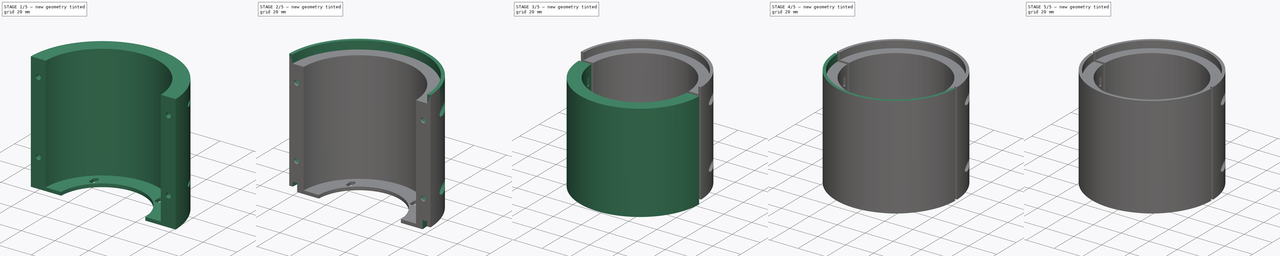
[diagram: build sequence overview — one tinted view per stage of 5, left to right]
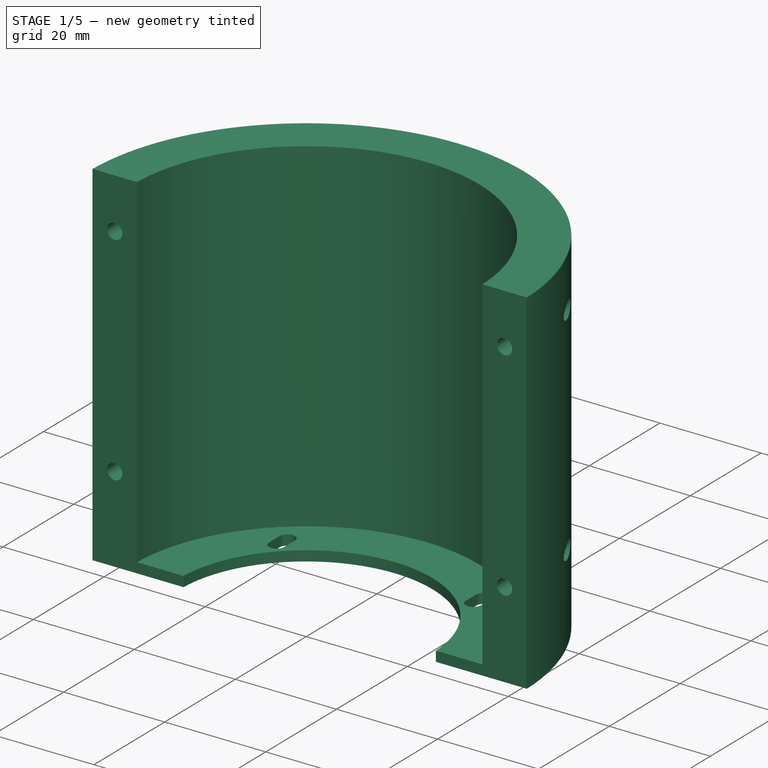
[diagram: stage 1 of 5 — iso view after this stage's code; geometry added in this stage tinted green]
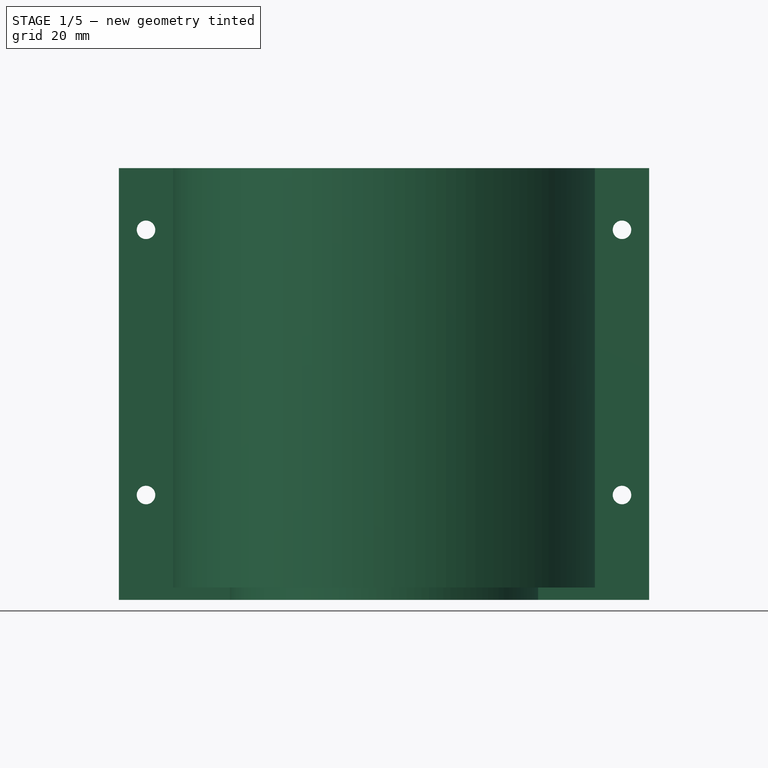
[diagram: stage 1 of 5 — front view after this stage's code; geometry added in this stage tinted green]
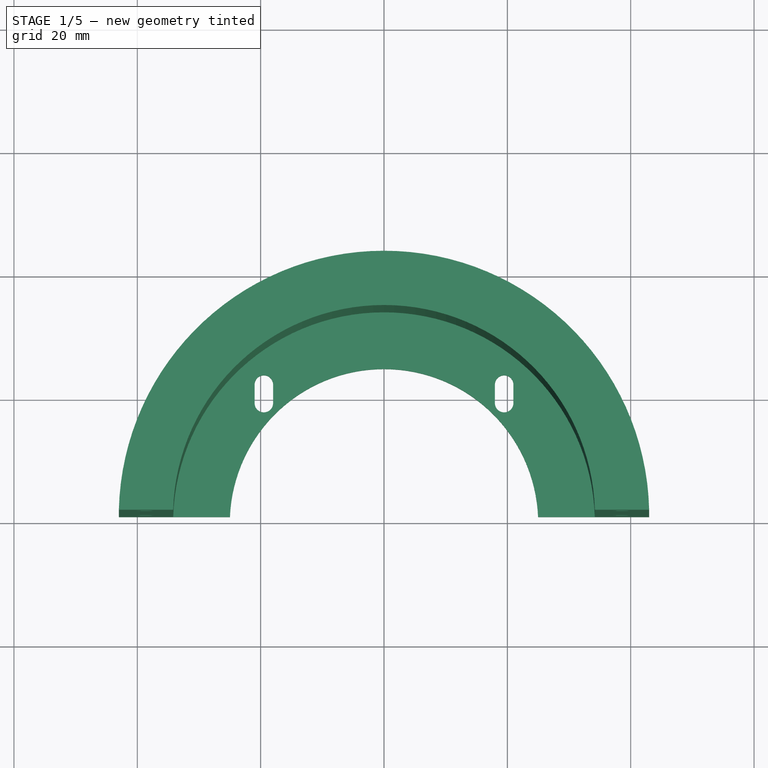
[diagram: stage 1 of 5 — top view after this stage's code; geometry added in this stage tinted green]
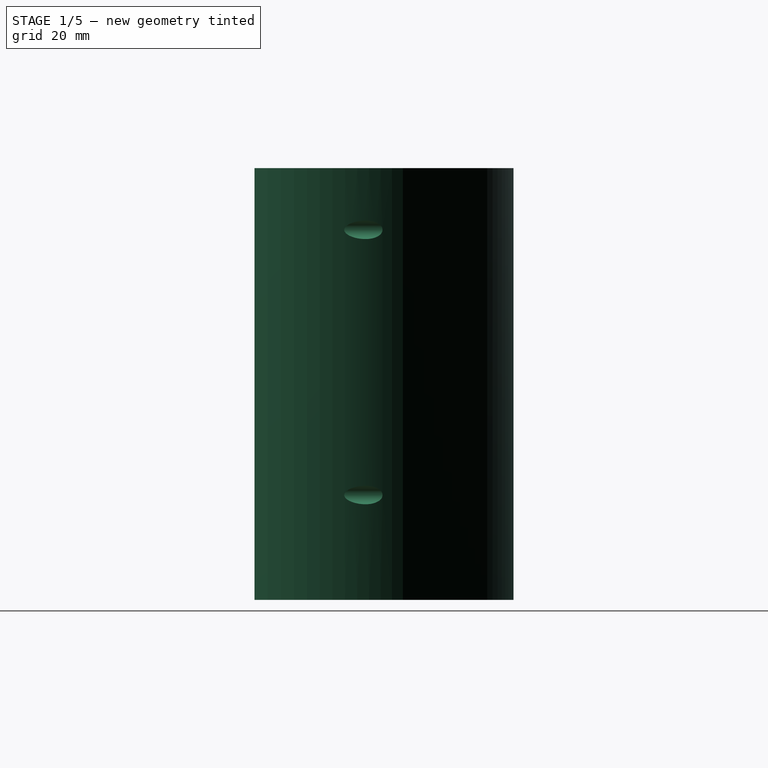
[diagram: stage 1 of 5 — right view after this stage's code; geometry added in this stage tinted green]
FCSTD DOCUMENT  (FreeCAD 1.0R39109 (Git))
Label: Rollei SL66 - Rollei Vario - Heidosmat
License: All rights reserved
LicenseURL: http://en.wikipedia.org/wiki/All_rights_reserved
objects: Sketcher::SketchObject×21, PartDesign::Pocket×14, PartDesign::Pad×6, PartDesign::Body×3, PartDesign::Revolution×1
note: 108 computed .brp shape members not serialized (recipe doc carries the construction recipe); baked Part::Feature solids carry a one-line shape summary decoded from their .brp

FEATURE [Sketcher::SketchObject] Sketch007
  ArcFitTolerance = 1e-06
  AttachmentSupport = -> [XY_Plane002]
  FullyConstrained = true
  MakeInternals = false
  MapMode = 5
  sketch-geometry (4):
    g0: ArcOfCircle CenterX=0 CenterY=0 CenterZ=0 NormalX=0 NormalY=0 NormalZ=1 AngleXU=0 Radius=25 StartAngle=0.0400107 EndAngle=3.10158
    g1: ArcOfCircle CenterX=0 CenterY=0 CenterZ=0 NormalX=0 NormalY=0 NormalZ=1 AngleXU=0 Radius=43 StartAngle=0.0232579 EndAngle=3.11833
    g2: LineSegment StartX=-42.9884 StartY=1 StartZ=0 EndX=-24.98 EndY=1 EndZ=0
    g3: LineSegment StartX=24.98 StartY=1 StartZ=0 EndX=42.9884 EndY=1 EndZ=0
  constraints (14):
    c: Coincident(g0,g-1)
    c: Coincident(g1,g0)
    c: Horizontal(g0,g1)
    c: Horizontal(g0,g1)
    c: Horizontal(g0,g0)
    c: Radius(g0) = 25
    c: Radius(g1) = 43
    c: Radius(g1) = 43
    c: Radius(g1) = 43
    c: DistanceY(g0,g0) = 1
    c: Coincident(g2,g1)
    c: Coincident(g2,g0)
    c: Coincident(g3,g0)
    c: Coincident(g3,g1)
FEATURE [PartDesign::Pad] Pad002
  Direction = (0,0,1)
  Length = 2
  Length2 = 10
  Profile = -> Sketch007
  ReferenceAxis = -> Sketch007 [N_Axis]
  Refine = true
  Suppressed = false
  Type = 0
FEATURE [Sketcher::SketchObject] Sketch008
  ArcFitTolerance = 1e-06
  AttachmentSupport = -> [Pad002]
  FullyConstrained = true
  MakeInternals = false
  MapMode = 5
  Placement = pos=(0,0,2) rot=(0,0,1;0rad)
  sketch-geometry (12):
    g0: GeomPoint X=-19.4807 Y=19.4807 Z=0
    g1: GeomPoint X=19.4807 Y=19.4807 Z=0
    g2: LineSegment [constr] StartX=-19.4807 StartY=19.4807 StartZ=0 EndX=0 EndY=0 EndZ=0
    g3: GeomPoint [constr] X=-18.42 Y=18.42 Z=0
    g4: ArcOfCircle CenterX=-19.4807 CenterY=19.4807 CenterZ=0 NormalX=0 NormalY=0 NormalZ=1 AngleXU=0 Radius=1.5 StartAngle=3.14159 EndAngle=6.28319
    g5: LineSegment StartX=-20.9807 StartY=19.4807 StartZ=0 EndX=-20.9807 EndY=22.4807 EndZ=0
    g6: LineSegment StartX=-17.9807 StartY=19.4807 StartZ=0 EndX=-17.9807 EndY=22.4807 EndZ=0
    g7: ArcOfCircle CenterX=-19.4807 CenterY=22.4807 CenterZ=0 NormalX=0 NormalY=0 NormalZ=1 AngleXU=0 Radius=1.5 StartAngle=-9e-16 EndAngle=3.14159
    g8: ArcOfCircle CenterX=19.4807 CenterY=19.4807 CenterZ=0 NormalX=0 NormalY=0 NormalZ=1 AngleXU=0 Radius=1.5 StartAngle=3.14159 EndAngle=6.28319
    g9: ArcOfCircle CenterX=19.4807 CenterY=22.4807 CenterZ=0 NormalX=0 NormalY=0 NormalZ=1 AngleXU=0 Radius=1.5 StartAngle=9e-16 EndAngle=3.14159
    g10: LineSegment StartX=17.9807 StartY=19.4807 StartZ=0 EndX=17.9807 EndY=22.4807 EndZ=0
    g11: LineSegment StartX=20.9807 StartY=19.4807 StartZ=0 EndX=20.9807 EndY=22.4807 EndZ=0
  constraints (30):
    c: Coincident(g2,g0)
    c: Coincident(g2,g-1)
    c: PointOnObject(g3,g2)
    c: DistanceX(g3,g2) = 18.42
    c: DistanceY(g2,g3) = 18.42
    c: Symmetric(g0,g1,g-2)
    c: Coincident(g4,g0)
    c: Angle(g4) = 3.14159
    c: Horizontal(g4,g4)
    c: Coincident(g5,g4)
    c: Vertical(g5)
    c: Coincident(g6,g4)
    c: Vertical(g6)
    c: Coincident(g7,g5)
    c: Coincident(g7,g6)
    c: Angle(g7) = 3.14159
    c: Horizontal(g6,g5)
    c: Diameter(g7) = 3
    c: PointOnObject(g3,g4)
    c: DistanceY(g6,g6) = 3
    c: Coincident(g8,g1)
    c: Coincident(g10,g8)
    c: Coincident(g10,g9)
    c: Coincident(g11,g8)
    c: Coincident(g11,g9)
    c: Symmetric(g7,g9,g-2)
    c: Symmetric(g4,g8,g-2)
    c: Symmetric(g9,g6,g-2)
    c: Equal(g11,g10)
    c: Horizontal(g8,g8)
FEATURE [PartDesign::Pocket] Pocket004
  BaseFeature = -> Pad002
  Direction = (0,0,-1)
  Length = 5
  Length2 = 5
  Profile = -> Sketch008
  ReferenceAxis = -> Sketch008 [N_Axis]
  Refine = true
  Suppressed = false
  Type = 0
FEATURE [Sketcher::SketchObject] Sketch009
  ArcFitTolerance = 1e-06
  AttachmentSupport = -> [Pocket004]
  ExternalGeometry = -> [Pocket004]
  FullyConstrained = true
  MakeInternals = false
  MapMode = 5
  Placement = pos=(0,0,2) rot=(0,0,1;0rad)
  sketch-geometry (4):
    g0: ArcOfCircle CenterX=0 CenterY=0 CenterZ=0 NormalX=0 NormalY=0 NormalZ=1 AngleXU=0 Radius=34.2 StartAngle=0.0292439 EndAngle=3.11235
    g1: ArcOfCircle CenterX=0 CenterY=0 CenterZ=0 NormalX=0 NormalY=0 NormalZ=1 AngleXU=0 Radius=43 StartAngle=0.0232579 EndAngle=3.11833
    g2: LineSegment StartX=-42.9884 StartY=1 StartZ=0 EndX=-34.1854 EndY=1 EndZ=0
    g3: LineSegment StartX=34.1854 StartY=1 StartZ=0 EndX=42.9884 EndY=1 EndZ=0
  constraints (11):
    c: Coincident(g0,g-1)
    c: Coincident(g1,g0)
    c: Horizontal(g1,g0)
    c: Horizontal(g0,g1)
    c: Horizontal(g0,g0)
    c: Radius(g0) = 34.2
    c: Coincident(g2,g1)
    c: Coincident(g2,g0)
    c: Coincident(g3,g0)
    c: Coincident(g3,g1)
    c: Coincident(g-3,g1)
FEATURE [PartDesign::Pad] Pad003
  BaseFeature = -> Pocket004
  Direction = (0,0,1)
  Length = 68
  Length2 = 10
  Profile = -> Sketch009
  ReferenceAxis = -> Sketch009 [N_Axis]
  Refine = true
  Suppressed = false
  Type = 0
FEATURE [Sketcher::SketchObject] Sketch010
  ArcFitTolerance = 1e-06
  AttachmentSupport = -> [XZ_Plane002]
  ExternalGeometry = -> [Pad003]
  FullyConstrained = true
  MakeInternals = false
  MapMode = 5
  Placement = pos=(0,0,0) rot=(1,0,0;1.5708rad)
  sketch-geometry (16):
    g0: GeomPoint X=-38.5869 Y=17 Z=0
    g1: GeomPoint X=-38.5869 Y=60 Z=0
    g2: GeomPoint X=38.5869 Y=17 Z=0
    g3: GeomPoint X=38.5869 Y=60 Z=0
    g4: LineSegment [constr] StartX=-42.9884 StartY=60 StartZ=0 EndX=-38.5869 EndY=60 EndZ=0
    g5: LineSegment [constr] StartX=-38.5869 StartY=60 StartZ=0 EndX=-34.1854 EndY=60 EndZ=0
    g6: LineSegment [constr] StartX=-38.5869 StartY=17 StartZ=0 EndX=-34.1854 EndY=17 EndZ=0
    g7: LineSegment [constr] StartX=-38.5869 StartY=17 StartZ=0 EndX=-42.9884 EndY=17 EndZ=0
    g8: LineSegment [constr] StartX=38.5869 StartY=17 StartZ=0 EndX=42.9884 EndY=17 EndZ=0
    g9: LineSegment [constr] StartX=38.5869 StartY=17 StartZ=0 EndX=34.1854 EndY=17 EndZ=0
    g10: LineSegment [constr] StartX=38.5869 StartY=60 StartZ=0 EndX=42.9884 EndY=60 EndZ=0
    g11: LineSegment [constr] StartX=38.5869 StartY=60 StartZ=0 EndX=34.1854 EndY=60 EndZ=0
    g12: Circle CenterX=-38.5869 CenterY=60 CenterZ=0 NormalX=0 NormalY=0 NormalZ=1 AngleXU=0 Radius=1.5
    g13: Circle CenterX=38.5869 CenterY=60 CenterZ=0 NormalX=0 NormalY=0 NormalZ=1 AngleXU=0 Radius=1.5
    g14: Circle CenterX=38.5869 CenterY=17 CenterZ=0 NormalX=0 NormalY=0 NormalZ=1 AngleXU=0 Radius=1.5
    g15: Circle CenterX=-38.5869 CenterY=17 CenterZ=0 NormalX=0 NormalY=0 NormalZ=1 AngleXU=0 Radius=1.5
  constraints (40):
    c: PointOnObject(g4,g-4)
    c: Coincident(g4,g1)
    c: Coincident(g5,g1)
    c: PointOnObject(g5,g-3)
    c: Horizontal(g5)
    c: Coincident(g6,g0)
    c: PointOnObject(g6,g-3)
    c: Horizontal(g6)
    c: Coincident(g7,g0)
    c: PointOnObject(g7,g-4)
    c: Horizontal(g7)
    c: Coincident(g8,g2)
    c: PointOnObject(g8,g-6)
    c: Horizontal(g8)
    c: Coincident(g9,g2)
    c: PointOnObject(g9,g-5)
    c: Horizontal(g9)
    c: Coincident(g10,g3)
    c: PointOnObject(g10,g-6)
    c: Horizontal(g10)
    c: Coincident(g11,g3)
    c: PointOnObject(g11,g-5)
    c: Equal(g4,g5)
    c: Horizontal(g4)
    c: Equal(g7,g6)
    c: Equal(g9,g8)
    c: Horizontal(g11)
    c: Equal(g11,g10)
    c: DistanceY(g-3,g6) = 15
    c: Horizontal(g6,g9)
    c: DistanceY(g4,g-4) = 10
    c: Horizontal(g11,g5)
    c: Coincident(g12,g1)
    c: Coincident(g13,g3)
    c: Coincident(g14,g2)
    c: Coincident(g15,g0)
    c: Equal(g15,g12)
    c: Equal(g15,g14)
    c: Equal(g14,g13)
    c: Diameter(g12) = 3
FEATURE [PartDesign::Pocket] Pocket005
  BaseFeature = -> Pad003
  Direction = (0,1,-2e-16)
  Length = 5
  Length2 = 5
  Profile = -> Sketch010
  ReferenceAxis = -> Sketch010 [N_Axis]
  Refine = true
  Suppressed = false
  Type = 1
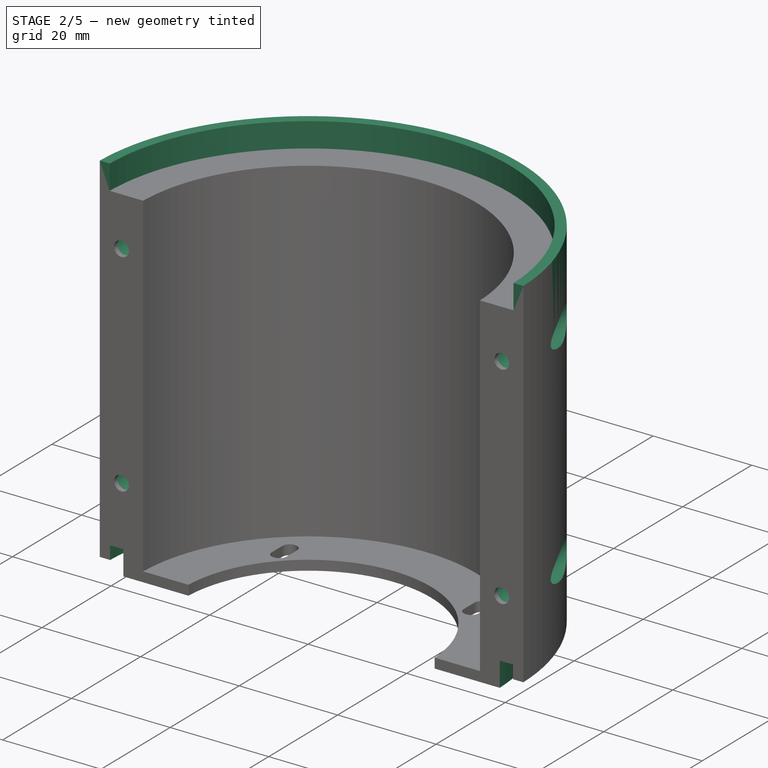
[diagram: stage 2 of 5 — iso view after this stage's code; geometry added in this stage tinted green]
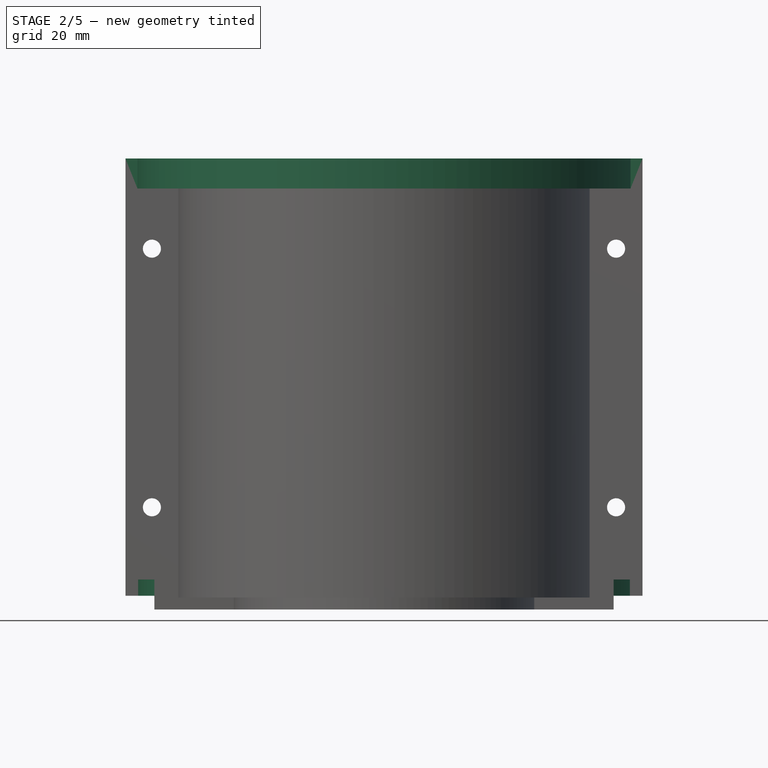
[diagram: stage 2 of 5 — front view after this stage's code; geometry added in this stage tinted green]
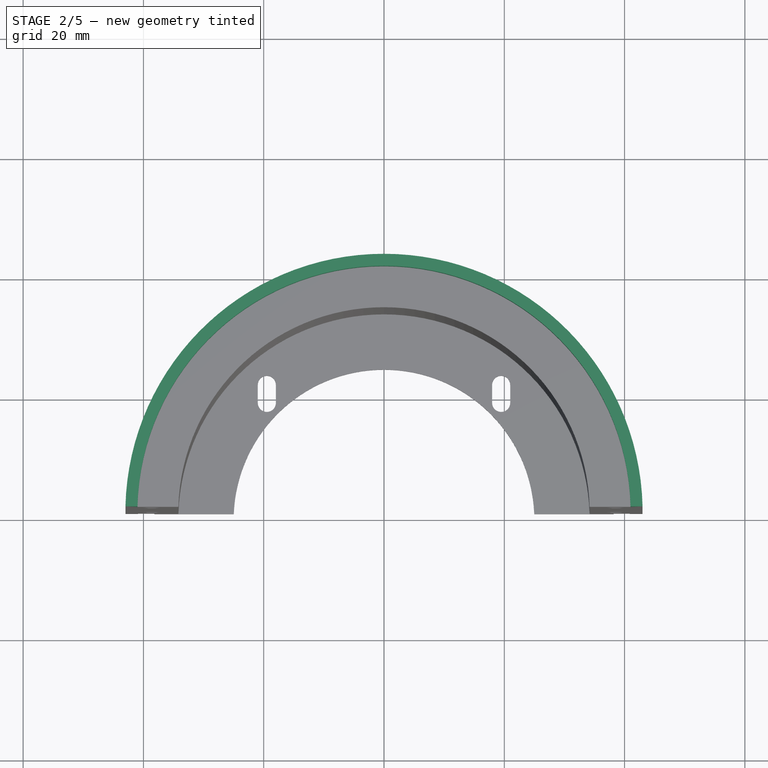
[diagram: stage 2 of 5 — top view after this stage's code; geometry added in this stage tinted green]
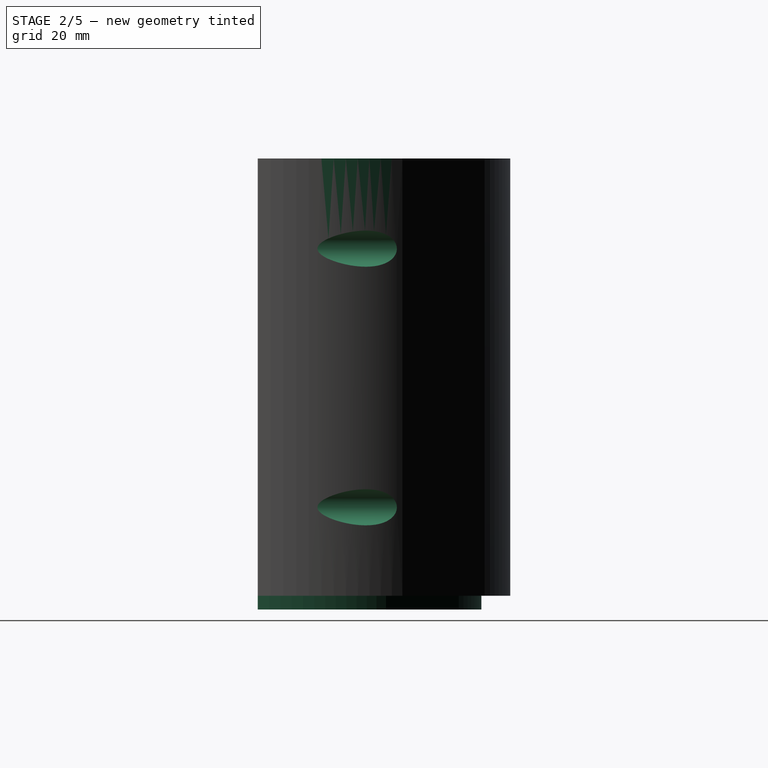
[diagram: stage 2 of 5 — right view after this stage's code; geometry added in this stage tinted green]
FEATURE [Sketcher::SketchObject] Sketch011
  ArcFitTolerance = 1e-06
  AttachmentSupport = -> [XZ_Plane002]
  ExternalGeometry = -> [Pocket005]
  FullyConstrained = true
  MakeInternals = false
  MapMode = 5
  Placement = pos=(0,0,0) rot=(1,0,0;1.5708rad)
  sketch-geometry (4):
    g0: Circle CenterX=-38.5869 CenterY=60 CenterZ=0 NormalX=0 NormalY=0 NormalZ=1 AngleXU=0 Radius=3
    g1: Circle CenterX=-38.5869 CenterY=17 CenterZ=0 NormalX=0 NormalY=0 NormalZ=1 AngleXU=0 Radius=3
    g2: Circle CenterX=38.5869 CenterY=17 CenterZ=0 NormalX=0 NormalY=0 NormalZ=1 AngleXU=0 Radius=3
    g3: Circle CenterX=38.5869 CenterY=60 CenterZ=0 NormalX=0 NormalY=0 NormalZ=1 AngleXU=0 Radius=3
  constraints (8):
    c: Equal(g3,g2)
    c: Equal(g2,g1)
    c: Equal(g1,g0)
    c: Diameter(g0) = 6
    c: Coincident(g0,g-6)
    c: Coincident(g1,g-5)
    c: Coincident(g2,g-4)
    c: Coincident(g3,g-3)
FEATURE [PartDesign::Pocket] Pocket006
  BaseFeature = -> Pocket005
  Direction = (0,1,-2e-16)
  Length = 26
  Length2 = -2
  Profile = -> Sketch011
  ReferenceAxis = -> Sketch011 [N_Axis]
  Refine = true
  Suppressed = false
  Type = 4
FEATURE [Sketcher::SketchObject] Sketch015
  ArcFitTolerance = 1e-06
  AttachmentSupport = -> [XY_Plane002]
  ExternalGeometry = -> [Pocket006]
  FullyConstrained = true
  MakeInternals = false
  MapMode = 5
  sketch-geometry (2):
    g0: Circle CenterX=0 CenterY=0 CenterZ=0 NormalX=0 NormalY=0 NormalZ=1 AngleXU=0 Radius=38.2
    g1: Circle CenterX=0 CenterY=0 CenterZ=0 NormalX=0 NormalY=0 NormalZ=1 AngleXU=0 Radius=43
  constraints (4):
    c: Coincident(g0,g-1)
    c: Coincident(g1,g0)
    c: Radius(g0) = 38.2
    c: PointOnObject(g-3,g1)
FEATURE [PartDesign::Pocket] Pocket010
  BaseFeature = -> Pocket006
  Direction = (0,0,-1)
  Length = 2.3
  Length2 = 5
  Profile = -> Sketch015
  ReferenceAxis = -> Sketch015 [N_Axis]
  Refine = true
  Reversed = true
  Suppressed = false
  Type = 0
FEATURE [Sketcher::SketchObject] Sketch018
  ArcFitTolerance = 1e-06
  AttachmentSupport = -> [XY_Plane002]
  ExternalGeometry = -> [Pocket010]
  FullyConstrained = true
  MakeInternals = false
  MapMode = 5
  sketch-geometry (4):
    g0: ArcOfCircle CenterX=0 CenterY=0 CenterZ=0 NormalX=0 NormalY=0 NormalZ=1 AngleXU=0 Radius=40.8991 StartAngle=0.0244528 EndAngle=3.11714
    g1: LineSegment StartX=-38.1869 StartY=1 StartZ=0 EndX=-40.8869 EndY=1 EndZ=0
    g2: ArcOfCircle CenterX=0 CenterY=0 CenterZ=0 NormalX=0 NormalY=0 NormalZ=1 AngleXU=0 Radius=38.2 StartAngle=0.026181 EndAngle=3.11541
    g3: LineSegment StartX=38.1869 StartY=1 StartZ=0 EndX=40.8869 EndY=1 EndZ=0
  constraints (11):
    c: Coincident(g0,g-1)
    c: Coincident(g2,g0)
    c: Coincident(g1,g2)
    c: Coincident(g3,g2)
    c: Coincident(g0,g3)
    c: Horizontal(g1)
    c: Coincident(g0,g1)
    c: Horizontal(g1,g2)
    c: DistanceX(g3,g3) = 2.7
    c: Horizontal(g2,g0)
    c: Coincident(g2,g-3)
FEATURE [PartDesign::Pocket] Pocket013
  BaseFeature = -> Pocket010
  Direction = (0,0,-1)
  Length = 5
  Length2 = 5
  Profile = -> Sketch018
  ReferenceAxis = -> Sketch018 [N_Axis]
  Refine = true
  Reversed = true
  Suppressed = false
  Type = 0
FEATURE [PartDesign::Body] Body001  label="lens holder lower part"
  AllowCompound = false
  Group = -> [Sketch004,Pad,Sketch005,Pocket003,Sketch006,Pad001,Sketch012,Pocket007,Sketch013,Pocket008,Sketch014,Pocket009,Sketch016,Pocket011,Sketch017,Pocket012,Sketch019,Pad004]
  Origin = -> Origin001
  Placement = pos=(0,0,22) rot=(0,0,1;0rad)
  Tip = -> Pad004
FEATURE [Sketcher::SketchObject] Sketch020
  ArcFitTolerance = 1e-06
  AttachmentSupport = -> [Pocket013]
  ExternalGeometry = -> [Pocket013]
  FullyConstrained = true
  MakeInternals = false
  MapMode = 5
  Placement = pos=(0,0,70) rot=(0,0,1;0rad)
  sketch-geometry (4):
    g0: ArcOfCircle CenterX=0 CenterY=0 CenterZ=0 NormalX=0 NormalY=0 NormalZ=1 AngleXU=0 Radius=43 StartAngle=0.0232579 EndAngle=3.11833
    g1: ArcOfCircle CenterX=0 CenterY=0 CenterZ=0 NormalX=0 NormalY=0 NormalZ=1 AngleXU=0 Radius=41.0006 StartAngle=0.0243923 EndAngle=3.1172
    g2: LineSegment StartX=-42.9884 StartY=1 StartZ=0 EndX=-40.9884 EndY=1 EndZ=0
    g3: LineSegment StartX=40.9884 StartY=1 StartZ=0 EndX=42.9884 EndY=1 EndZ=0
  constraints (11):
    c: Coincident(g0,g-1)
    c: Coincident(g0,g-3)
    c: Horizontal(g0,g-4)
    c: Coincident(g1,g0)
    c: PointOnObject(g1,g-3)
    c: PointOnObject(g1,g-4)
    c: Coincident(g2,g0)
    c: Coincident(g2,g1)
    c: Coincident(g3,g1)
    c: Coincident(g3,g0)
    c: DistanceX(g2,g2) = 2
FEATURE [PartDesign::Pad] Pad005
  BaseFeature = -> Pocket013
  Direction = (0,0,1)
  Length = 5
  Length2 = 10
  Profile = -> Sketch020
  ReferenceAxis = -> Sketch020 [N_Axis]
  Refine = true
  Suppressed = false
  Type = 0
FEATURE [PartDesign::Body] Body002  label="lens holder upper part"
  AllowCompound = false
  Group = -> [Sketch007,Pad002,Sketch008,Pocket004,Sketch009,Pad003,Sketch010,Pocket005,Sketch011,Pocket006,Sketch015,Pocket010,Sketch018,Pocket013,Sketch020,Pad005]
  Origin = -> Origin002
  Placement = pos=(0,0,22) rot=(0,0,1;0rad)
  Tip = -> Pad005
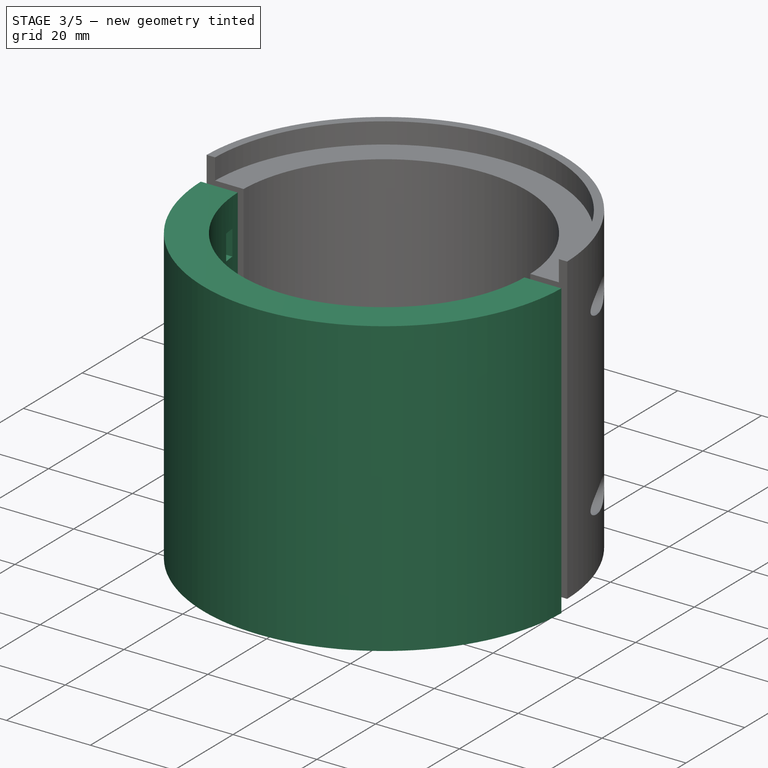
[diagram: stage 3 of 5 — iso view after this stage's code; geometry added in this stage tinted green]
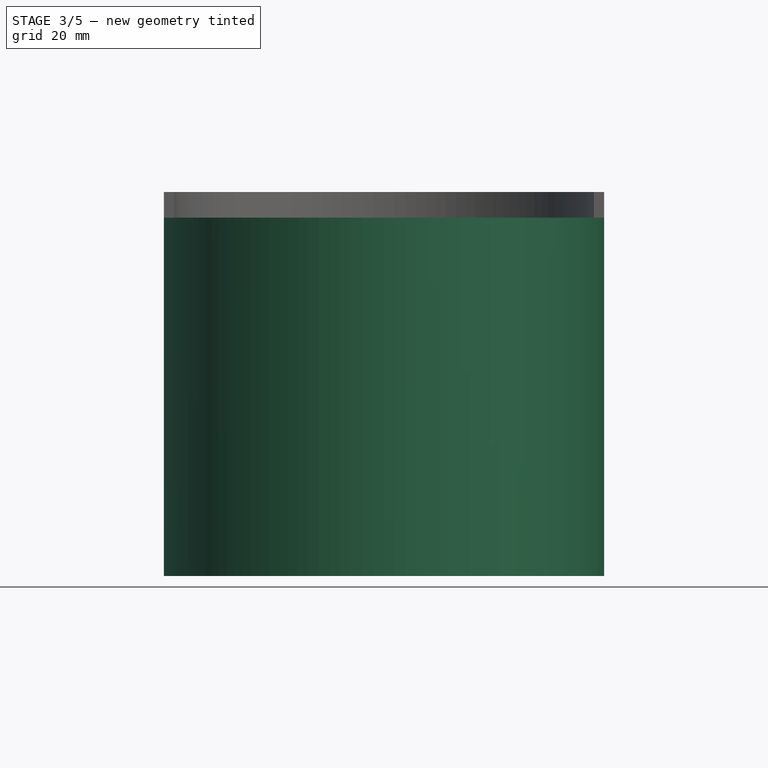
[diagram: stage 3 of 5 — front view after this stage's code; geometry added in this stage tinted green]
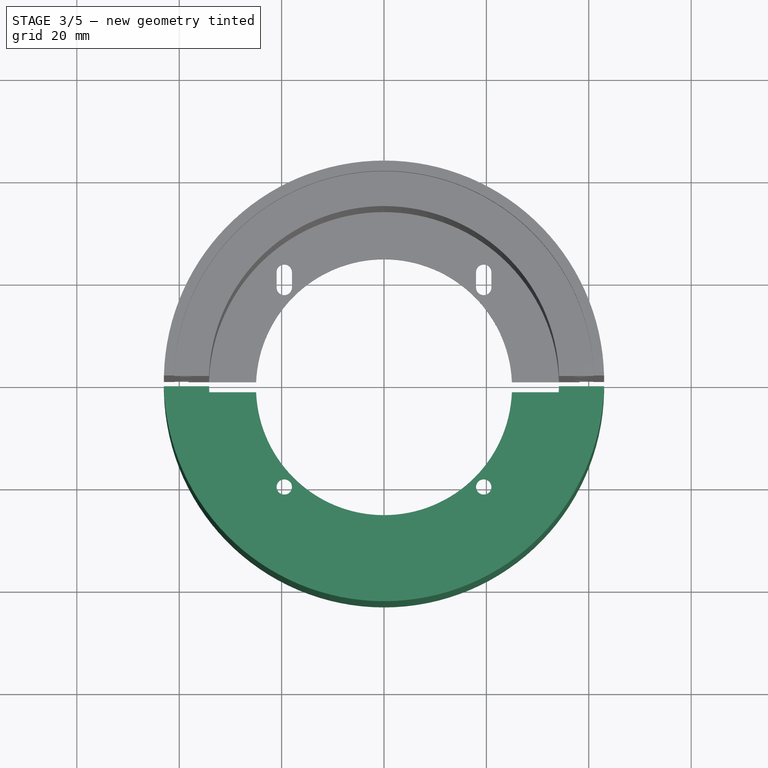
[diagram: stage 3 of 5 — top view after this stage's code; geometry added in this stage tinted green]
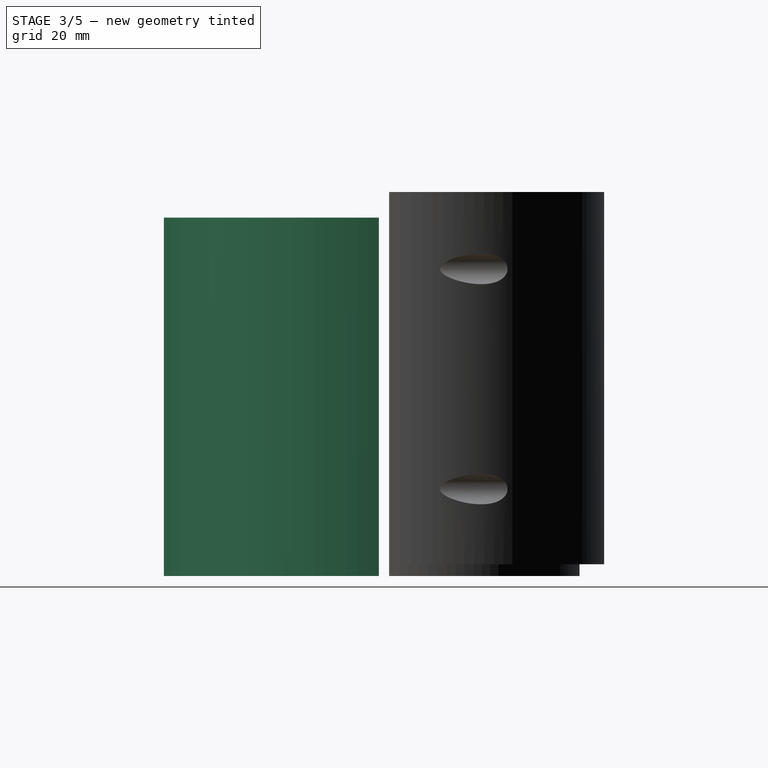
[diagram: stage 3 of 5 — right view after this stage's code; geometry added in this stage tinted green]
FEATURE [PartDesign::Body] Body  label="lens bayonett"
  AllowCompound = false
  Group = -> [Sketch,Revolution,Sketch001,Pocket,Sketch002,Pocket001,Sketch003,Pocket002]
  Origin = -> Origin
  Placement = pos=(0,0,0) rot=(0,0,1;-0.785398rad)
  Tip = -> Pocket002
FEATURE [Sketcher::SketchObject] Sketch004
  ArcFitTolerance = 1e-06
  AttachmentSupport = -> [XY_Plane001]
  FullyConstrained = true
  MakeInternals = false
  MapMode = 5
  sketch-geometry (4):
    g0: ArcOfCircle CenterX=0 CenterY=0 CenterZ=0 NormalX=0 NormalY=0 NormalZ=1 AngleXU=0 Radius=25 StartAngle=3.1816 EndAngle=6.24317
    g1: ArcOfCircle CenterX=0 CenterY=0 CenterZ=0 NormalX=0 NormalY=0 NormalZ=1 AngleXU=0 Radius=43 StartAngle=3.16485 EndAngle=6.25993
    g2: LineSegment StartX=-42.9884 StartY=-1 StartZ=0 EndX=-24.98 EndY=-1 EndZ=0
    g3: LineSegment StartX=24.98 StartY=-1 StartZ=0 EndX=42.9884 EndY=-1 EndZ=0
  constraints (12):
    c: Coincident(g0,g-1)
    c: Coincident(g1,g0)
    c: Horizontal(g0,g1)
    c: Horizontal(g0,g1)
    c: Horizontal(g0,g0)
    c: Radius(g0) = 25
    c: Radius(g1) = 43
    c: Coincident(g2,g1)
    c: Coincident(g2,g0)
    c: Coincident(g3,g0)
    c: Coincident(g3,g1)
    c: DistanceY(g0,g0) = 1
FEATURE [PartDesign::Pad] Pad
  Direction = (0,0,1)
  Length = 2
  Length2 = 10
  Profile = -> Sketch004
  ReferenceAxis = -> Sketch004 [N_Axis]
  Refine = true
  Suppressed = false
  Type = 0
FEATURE [Sketcher::SketchObject] Sketch005
  ArcFitTolerance = 1e-06
  AttachmentSupport = -> [Pad]
  FullyConstrained = true
  MakeInternals = false
  MapMode = 5
  Placement = pos=(0,0,2) rot=(0,0,1;0rad)
  sketch-geometry (6):
    g0: GeomPoint X=-19.4807 Y=-19.4807 Z=0
    g1: GeomPoint X=19.4807 Y=-19.4807 Z=0
    g2: Circle CenterX=-19.4807 CenterY=-19.4807 CenterZ=0 NormalX=0 NormalY=0 NormalZ=1 AngleXU=0 Radius=1.5
    g3: LineSegment [constr] StartX=-19.4807 StartY=-19.4807 StartZ=0 EndX=0 EndY=0 EndZ=0
    g4: GeomPoint [constr] X=-18.42 Y=-18.42 Z=0
    g5: Circle CenterX=19.4807 CenterY=-19.4807 CenterZ=0 NormalX=0 NormalY=0 NormalZ=1 AngleXU=0 Radius=1.5
  constraints (11):
    c: Symmetric(g1,g0,g-2)
    c: Coincident(g2,g0)
    c: Diameter(g2) = 3
    c: Coincident(g3,g0)
    c: Coincident(g3,g-1)
    c: PointOnObject(g4,g3)
    c: PointOnObject(g4,g2)
    c: DistanceY(g4,g3) = 18.42
    c: DistanceX(g4,g3) = 18.42
    c: Coincident(g5,g1)
    c: Diameter(g5) = 3
FEATURE [PartDesign::Pocket] Pocket003
  BaseFeature = -> Pad
  Direction = (0,0,-1)
  Length = 5
  Length2 = 5
  Profile = -> Sketch005
  ReferenceAxis = -> Sketch005 [N_Axis]
  Refine = true
  Suppressed = false
  Type = 1
FEATURE [Sketcher::SketchObject] Sketch006
  ArcFitTolerance = 1e-06
  AttachmentSupport = -> [Pocket003]
  ExternalGeometry = -> [Pocket003]
  FullyConstrained = true
  MakeInternals = false
  MapMode = 5
  Placement = pos=(0,0,2) rot=(0,0,1;0rad)
  sketch-geometry (4):
    g0: ArcOfCircle CenterX=0 CenterY=0 CenterZ=0 NormalX=0 NormalY=0 NormalZ=1 AngleXU=0 Radius=34.2 StartAngle=3.17084 EndAngle=6.25394
    g1: ArcOfCircle CenterX=0 CenterY=0 CenterZ=0 NormalX=0 NormalY=0 NormalZ=1 AngleXU=0 Radius=43 StartAngle=3.16485 EndAngle=6.25993
    g2: LineSegment StartX=-42.9884 StartY=-1 StartZ=0 EndX=-34.1854 EndY=-1 EndZ=0
    g3: LineSegment StartX=34.1854 StartY=-1 StartZ=0 EndX=42.9884 EndY=-1 EndZ=0
  constraints (11):
    c: Coincident(g0,g-1)
    c: Coincident(g1,g0)
    c: Coincident(g1,g-3)
    c: PointOnObject(g0,g-3)
    c: PointOnObject(g0,g-4)
    c: Diameter(g0) = 68.4
    c: PointOnObject(g1,g-4)
    c: Coincident(g2,g1)
    c: Coincident(g2,g0)
    c: Coincident(g3,g0)
    c: Coincident(g3,g1)
FEATURE [PartDesign::Pad] Pad001
  BaseFeature = -> Pocket003
  Direction = (0,0,1)
  Length = 68
  Length2 = 10
  Profile = -> Sketch006
  ReferenceAxis = -> Sketch006 [N_Axis]
  Refine = true
  Suppressed = false
  Type = 0
FEATURE [Sketcher::SketchObject] Sketch012
  ArcFitTolerance = 1e-06
  AttachmentSupport = -> [XZ_Plane001]
  ExternalGeometry = -> [Pad001]
  FullyConstrained = true
  MakeInternals = false
  MapMode = 5
  Placement = pos=(0,0,0) rot=(1,0,0;1.5708rad)
  sketch-geometry (6):
    g0: Circle CenterX=-38.5869 CenterY=17 CenterZ=0 NormalX=0 NormalY=0 NormalZ=1 AngleXU=0 Radius=1.5
    g1: Circle CenterX=38.5869 CenterY=17 CenterZ=0 NormalX=0 NormalY=0 NormalZ=1 AngleXU=0 Radius=1.5
    g2: Circle CenterX=38.5869 CenterY=60 CenterZ=0 NormalX=0 NormalY=0 NormalZ=1 AngleXU=0 Radius=1.5
    g3: Circle CenterX=-38.5869 CenterY=60 CenterZ=0 NormalX=0 NormalY=0 NormalZ=1 AngleXU=0 Radius=1.5
    g4: LineSegment [constr] StartX=-42.9884 StartY=17 StartZ=0 EndX=-38.5869 EndY=17 EndZ=0
    g5: LineSegment [constr] StartX=-38.5869 StartY=17 StartZ=0 EndX=-34.1854 EndY=17 EndZ=0
  constraints (16):
    c: Symmetric(g1,g0,g-2)
    c: Symmetric(g2,g3,g-2)
    c: Equal(g2,g1)
    c: Equal(g1,g0)
    c: Equal(g0,g3)
    c: PointOnObject(g4,g-6)
    c: Coincident(g4,g0)
    c: Horizontal(g4)
    c: Coincident(g5,g0)
    c: PointOnObject(g5,g-3)
    c: Equal(g4,g5)
    c: Horizontal(g5)
    c: Diameter(g0) = 3
    c: Vertical(g3,g0)
    c: DistanceY(g3,g-6) = 10
    c: DistanceY(g-3,g0) = 15
FEATURE [PartDesign::Pocket] Pocket007
  BaseFeature = -> Pad001
  Direction = (0,1,-2e-16)
  Length = 5
  Length2 = 5
  Profile = -> Sketch012
  ReferenceAxis = -> Sketch012 [N_Axis]
  Refine = true
  Reversed = true
  Suppressed = false
  Type = 0
FEATURE [Sketcher::SketchObject] Sketch013
  ArcFitTolerance = 1e-06
  AttachmentSupport = -> [YZ_Plane001]
  ExternalGeometry = -> [Pocket007]
  FullyConstrained = true
  MakeInternals = false
  MapMode = 5
  Placement = pos=(0,0,0) rot=(0.57735,0.57735,0.57735;2.0944rad)
  sketch-geometry (10):
    g0: LineSegment StartX=-3 StartY=14 StartZ=0 EndX=-3 EndY=20 EndZ=0
    g1: LineSegment StartX=-3 StartY=20 StartZ=0 EndX=-5.6 EndY=20 EndZ=0
    g2: LineSegment StartX=-5.6 StartY=20 StartZ=0 EndX=-5.6 EndY=14 EndZ=0
    g3: LineSegment StartX=-5.6 StartY=14 StartZ=0 EndX=-3 EndY=14 EndZ=0
    g4: LineSegment StartX=-5.6 StartY=63 StartZ=0 EndX=-5.6 EndY=57 EndZ=0
    g5: LineSegment StartX=-5.6 StartY=57 StartZ=0 EndX=-3 EndY=57 EndZ=0
    g6: LineSegment StartX=-3 StartY=57 StartZ=0 EndX=-3 EndY=63 EndZ=0
    g7: LineSegment StartX=-3 StartY=63 StartZ=0 EndX=-5.6 EndY=63 EndZ=0
    g8: GeomPoint X=-3 Y=60 Z=0
    g9: GeomPoint X=-3 Y=17 Z=0
  constraints (26):
    c: Coincident(g0,g1)
    c: Coincident(g1,g2)
    c: Coincident(g2,g3)
    c: Coincident(g3,g0)
    c: Vertical(g0)
    c: Vertical(g2)
    c: Horizontal(g1)
    c: Horizontal(g3)
    c: Coincident(g4,g5)
    c: Coincident(g5,g6)
    c: Coincident(g6,g7)
    c: Coincident(g7,g4)
    c: Vertical(g4)
    c: Vertical(g6)
    c: Horizontal(g5)
    c: Horizontal(g7)
    c: Equal(g2,g4)
    c: Equal(g1,g5)
    c: Symmetric(g6,g6,g8)
    c: Symmetric(g0,g0,g9)
    c: DistanceY(g8,g-3) = 10
    c: Vertical(g0,g5)
    c: DistanceX(g0,g-3) = 2
    c: DistanceY(g2,g2) = 6
    c: DistanceX(g1,g1) = 2.6
    c: DistanceY(g-4,g9) = 15
FEATURE [PartDesign::Pocket] Pocket008
  BaseFeature = -> Pocket007
  Direction = (-1,0,0)
  Length = 41.4
  Length2 = 0
  Profile = -> Sketch013
  ReferenceAxis = -> Sketch013 [N_Axis]
  Refine = true
  Suppressed = false
  Type = 0
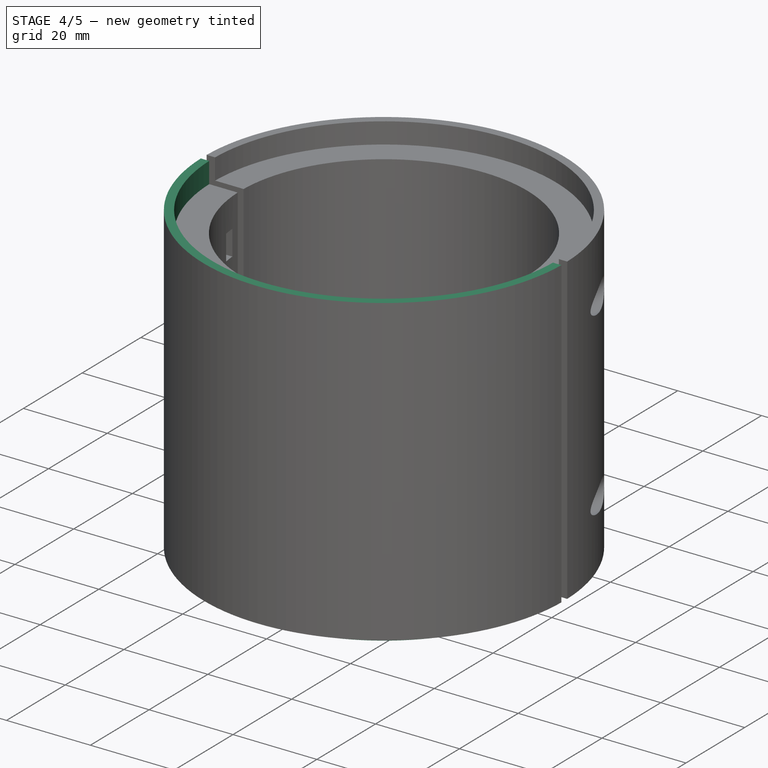
[diagram: stage 4 of 5 — iso view after this stage's code; geometry added in this stage tinted green]
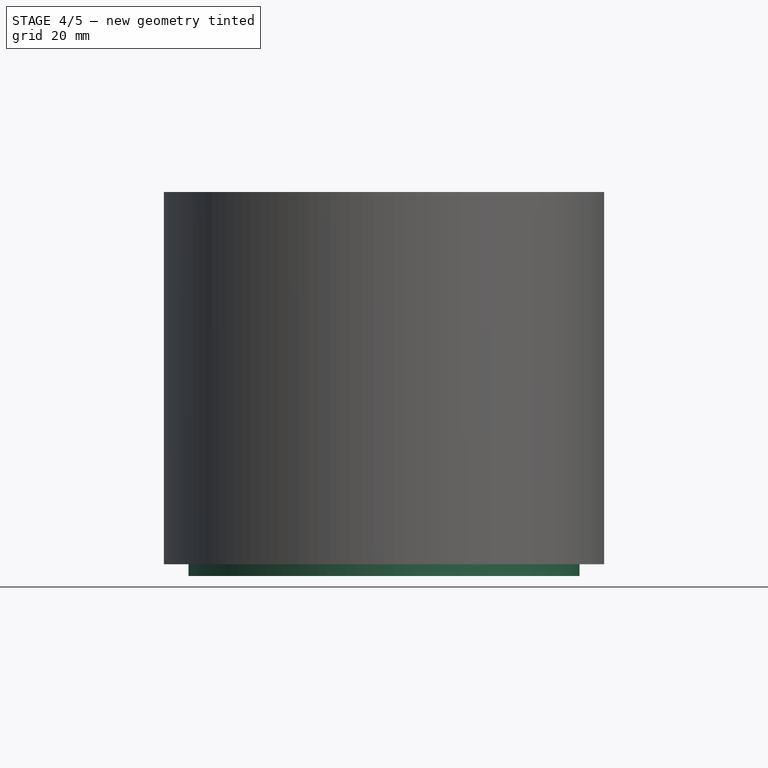
[diagram: stage 4 of 5 — front view after this stage's code; geometry added in this stage tinted green]
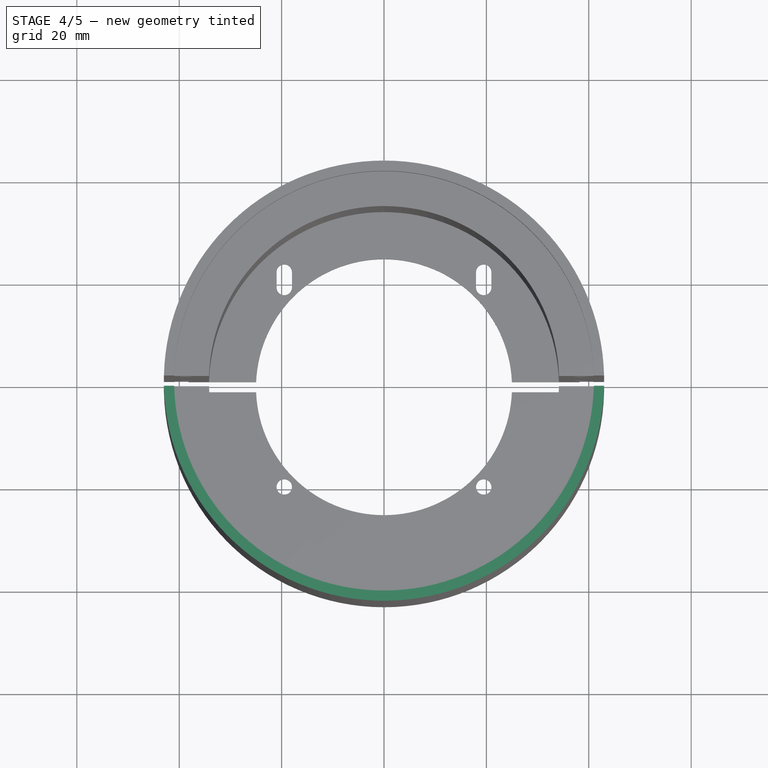
[diagram: stage 4 of 5 — top view after this stage's code; geometry added in this stage tinted green]
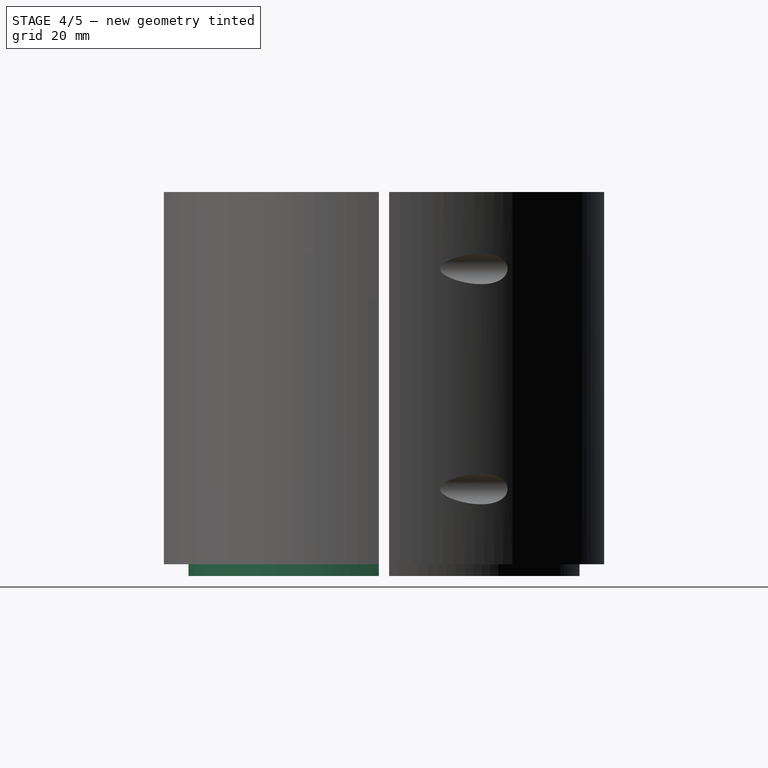
[diagram: stage 4 of 5 — right view after this stage's code; geometry added in this stage tinted green]
FEATURE [Sketcher::SketchObject] Sketch014
  ArcFitTolerance = 1e-06
  AttachmentSupport = -> [YZ_Plane001]
  ExternalGeometry = -> [Pocket008]
  FullyConstrained = true
  MakeInternals = false
  MapMode = 5
  Placement = pos=(0,0,0) rot=(0.57735,0.57735,0.57735;2.0944rad)
  sketch-geometry (8):
    g0: LineSegment StartX=-3 StartY=63 StartZ=0 EndX=-5.6 EndY=63 EndZ=0
    g1: LineSegment StartX=-5.6 StartY=63 StartZ=0 EndX=-5.6 EndY=57 EndZ=0
    g2: LineSegment StartX=-5.6 StartY=57 StartZ=0 EndX=-3 EndY=57 EndZ=0
    g3: LineSegment StartX=-3 StartY=57 StartZ=0 EndX=-3 EndY=63 EndZ=0
    g4: LineSegment StartX=-3 StartY=20 StartZ=0 EndX=-5.6 EndY=20 EndZ=0
    g5: LineSegment StartX=-5.6 StartY=20 StartZ=0 EndX=-5.6 EndY=14 EndZ=0
    g6: LineSegment StartX=-5.6 StartY=14 StartZ=0 EndX=-3 EndY=14 EndZ=0
    g7: LineSegment StartX=-3 StartY=14 StartZ=0 EndX=-3 EndY=20 EndZ=0
  constraints (20):
    c: Coincident(g0,g1)
    c: Coincident(g1,g2)
    c: Coincident(g2,g3)
    c: Coincident(g3,g0)
    c: Horizontal(g2)
    c: Vertical(g3)
    c: Coincident(g4,g5)
    c: Coincident(g5,g6)
    c: Coincident(g6,g7)
    c: Coincident(g7,g4)
    c: Horizontal(g4)
    c: Horizontal(g6)
    c: Vertical(g5)
    c: Coincident(g4,g-3)
    c: Vertical(g1,g4)
    c: Horizontal(g0)
    c: Coincident(g1,g-4)
    c: Coincident(g6,g-3)
    c: Vertical(g2,g4)
    c: Coincident(g0,g-4)
FEATURE [PartDesign::Pocket] Pocket009
  BaseFeature = -> Pocket008
  Direction = (-1,0,0)
  Length = 41.4
  Length2 = 5
  Profile = -> Sketch014
  ReferenceAxis = -> Sketch014 [N_Axis]
  Refine = true
  Reversed = true
  Suppressed = false
  Type = 0
FEATURE [Sketcher::SketchObject] Sketch016
  ArcFitTolerance = 1e-06
  AttachmentSupport = -> [XY_Plane001]
  ExternalGeometry = -> [Pocket009]
  FullyConstrained = true
  MakeInternals = false
  MapMode = 5
  sketch-geometry (2):
    g0: Circle CenterX=0 CenterY=0 CenterZ=0 NormalX=0 NormalY=0 NormalZ=1 AngleXU=0 Radius=38.2
    g1: Circle CenterX=0 CenterY=0 CenterZ=0 NormalX=0 NormalY=0 NormalZ=1 AngleXU=0 Radius=43
  constraints (4):
    c: Coincident(g0,g-1)
    c: Coincident(g1,g0)
    c: Radius(g0) = 38.2
    c: PointOnObject(g-3,g1)
FEATURE [PartDesign::Pocket] Pocket011
  BaseFeature = -> Pocket009
  Direction = (0,0,-1)
  Length = 2.3
  Length2 = 5
  Profile = -> Sketch016
  ReferenceAxis = -> Sketch016 [N_Axis]
  Refine = true
  Reversed = true
  Suppressed = false
  Type = 0
FEATURE [Sketcher::SketchObject] Sketch017
  ArcFitTolerance = 1e-06
  AttachmentSupport = -> [XY_Plane001]
  ExternalGeometry = -> [Pocket011]
  FullyConstrained = true
  MakeInternals = false
  MapMode = 5
  sketch-geometry (5):
    g0: GeomPoint X=40.8869 Y=-1 Z=0
    g1: ArcOfCircle CenterX=-8e-16 CenterY=0 CenterZ=0 NormalX=0 NormalY=0 NormalZ=1 AngleXU=0 Radius=40.8991 StartAngle=3.16605 EndAngle=6.25873
    g2: ArcOfCircle CenterX=-8e-16 CenterY=0 CenterZ=0 NormalX=0 NormalY=0 NormalZ=1 AngleXU=0 Radius=38.2 StartAngle=3.16777 EndAngle=6.257
    g3: LineSegment StartX=-40.8869 StartY=-1 StartZ=0 EndX=-38.1869 EndY=-1 EndZ=0
    g4: LineSegment StartX=38.1869 StartY=-1 StartZ=0 EndX=40.8869 EndY=-1 EndZ=0
  constraints (12):
    c: Coincident(g0,g1)
    c: Horizontal(g0,g1)
    c: Coincident(g2,g1)
    c: Coincident(g2,g-6)
    c: Coincident(g2,g-5)
    c: Coincident(g3,g1)
    c: Coincident(g3,g2)
    c: Horizontal(g3)
    c: Coincident(g4,g2)
    c: Coincident(g4,g0)
    c: DistanceX(g4,g4) = 2.7
    c: Coincident(g-1,g1)
FEATURE [PartDesign::Pocket] Pocket012
  BaseFeature = -> Pocket011
  Direction = (0,0,-1)
  Length = 5
  Length2 = 5
  Profile = -> Sketch017
  ReferenceAxis = -> Sketch017 [N_Axis]
  Refine = true
  Reversed = true
  Suppressed = false
  Type = 0
FEATURE [Sketcher::SketchObject] Sketch019
  ArcFitTolerance = 1e-06
  AttachmentSupport = -> [Pocket012]
  ExternalGeometry = -> [Pocket012]
  FullyConstrained = true
  MakeInternals = false
  MapMode = 5
  Placement = pos=(0,0,70) rot=(0,0,1;0rad)
  sketch-geometry (4):
    g0: ArcOfCircle CenterX=0 CenterY=0 CenterZ=0 NormalX=0 NormalY=0 NormalZ=1 AngleXU=0 Radius=43 StartAngle=3.16485 EndAngle=6.25993
    g1: ArcOfCircle CenterX=0 CenterY=0 CenterZ=0 NormalX=0 NormalY=0 NormalZ=1 AngleXU=0 Radius=41.0006 StartAngle=3.16598 EndAngle=6.25879
    g2: LineSegment StartX=-42.9884 StartY=-1 StartZ=0 EndX=-40.9884 EndY=-1 EndZ=0
    g3: LineSegment StartX=40.9884 StartY=-1 StartZ=0 EndX=42.9884 EndY=-1 EndZ=0
  constraints (11):
    c: Coincident(g0,g-1)
    c: Coincident(g0,g-4)
    c: Horizontal(g0,g0)
    c: Coincident(g1,g0)
    c: Horizontal(g1,g0)
    c: PointOnObject(g1,g-5)
    c: Coincident(g2,g0)
    c: Coincident(g2,g1)
    c: Coincident(g3,g1)
    c: Coincident(g3,g0)
    c: DistanceX(g2,g2) = 2
FEATURE [PartDesign::Pad] Pad004
  BaseFeature = -> Pocket012
  Direction = (0,0,1)
  Length = 5
  Length2 = 10
  Profile = -> Sketch019
  ReferenceAxis = -> Sketch019 [N_Axis]
  Refine = true
  Suppressed = false
  Type = 0
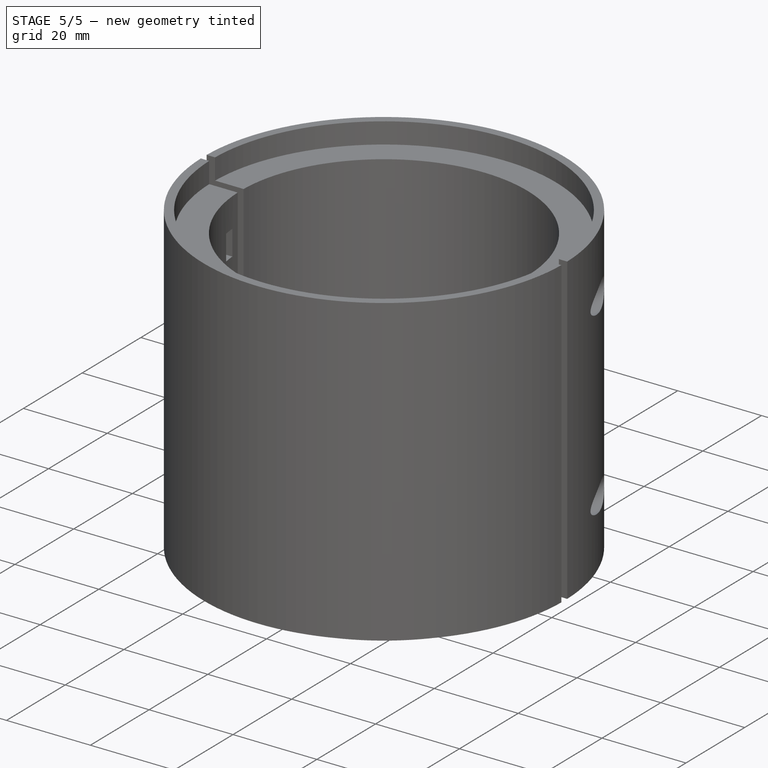
[diagram: stage 5 of 5 — iso view after this stage's code; geometry added in this stage tinted green]
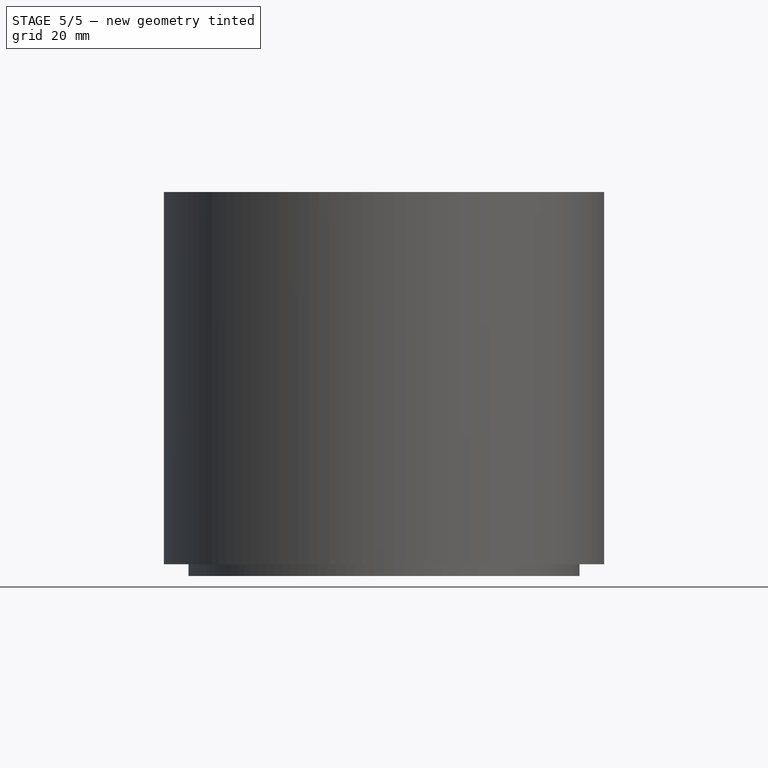
[diagram: stage 5 of 5 — front view after this stage's code; geometry added in this stage tinted green]
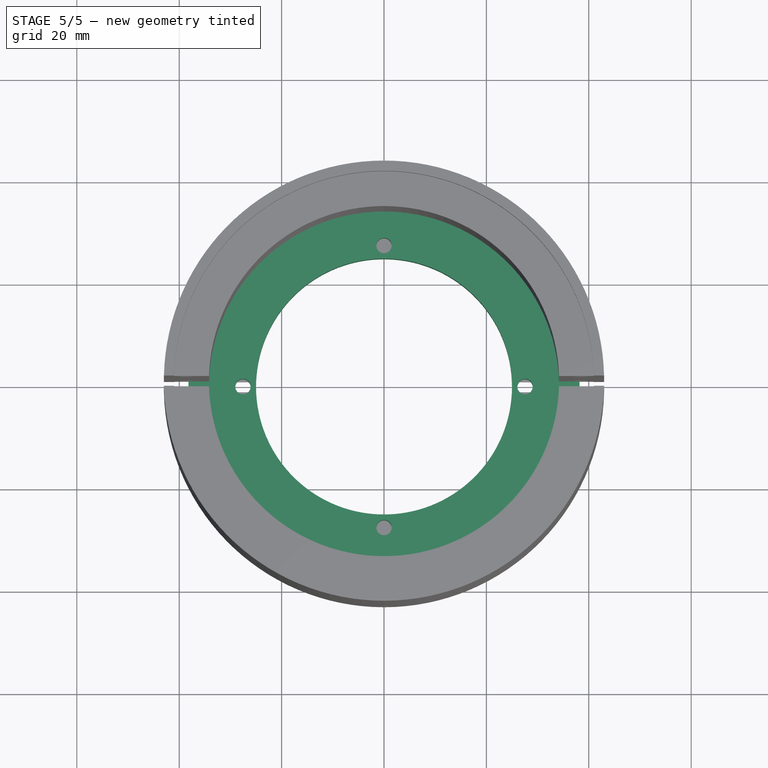
[diagram: stage 5 of 5 — top view after this stage's code; geometry added in this stage tinted green]
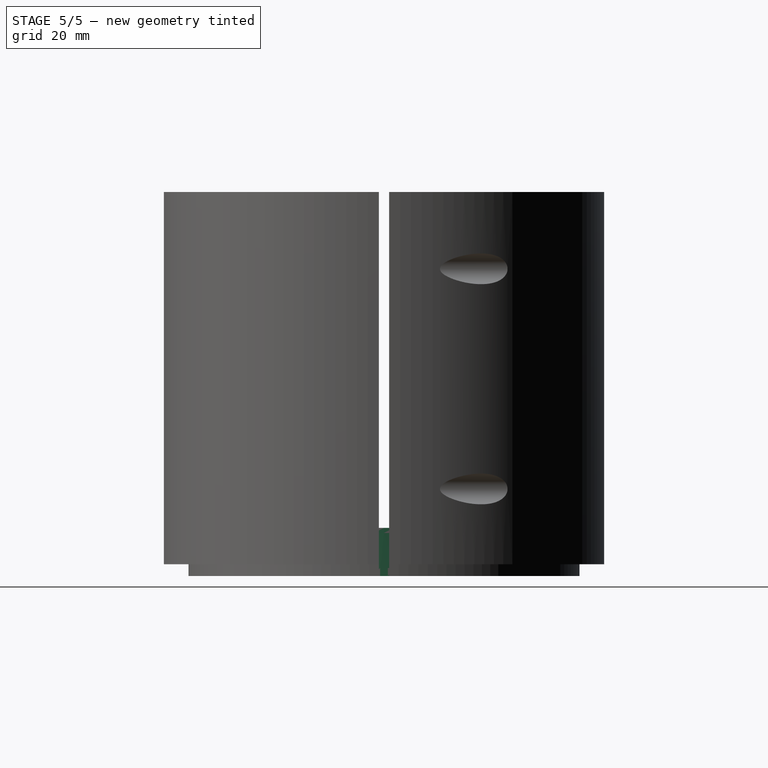
[diagram: stage 5 of 5 — right view after this stage's code; geometry added in this stage tinted green]
FEATURE [Sketcher::SketchObject] Sketch
  ArcFitTolerance = 0
  AttachmentSupport = -> [XZ_Plane]
  FullyConstrained = true
  MakeInternals = false
  MapMode = 5
  Placement = pos=(0,0,0) rot=(1,0,0;1.5708rad)
  sketch-geometry (10):
    g0: LineSegment StartX=-25 StartY=9.4 StartZ=0 EndX=-25 EndY=0 EndZ=0
    g1: LineSegment StartX=-25 StartY=0 StartZ=0 EndX=-31.1 EndY=0 EndZ=0
    g2: LineSegment StartX=-31.1 StartY=0 StartZ=0 EndX=-31.1 EndY=1.55 EndZ=0
    g3: LineSegment StartX=-31.1 StartY=1.55 StartZ=0 EndX=-30.1 EndY=1.55 EndZ=0
    g4: LineSegment StartX=-30.1 StartY=1.55 StartZ=0 EndX=-30.1 EndY=4.9 EndZ=0
    g5: LineSegment StartX=-30.1 StartY=4.9 StartZ=0 EndX=-31.1 EndY=4.9 EndZ=0
    g6: LineSegment StartX=-31.1 StartY=4.9 StartZ=0 EndX=-31.1 EndY=8.4 EndZ=0
    g7: LineSegment StartX=-31.1 StartY=8.4 StartZ=0 EndX=-38.2 EndY=8.4 EndZ=0
    g8: LineSegment StartX=-38.2 StartY=8.4 StartZ=0 EndX=-38.2 EndY=9.4 EndZ=0
    g9: LineSegment StartX=-38.2 StartY=9.4 StartZ=0 EndX=-25 EndY=9.4 EndZ=0
  constraints (30):
    c: Coincident(g1,g0)
    c: Coincident(g2,g1)
    c: Coincident(g3,g2)
    c: Coincident(g4,g3)
    c: Coincident(g5,g4)
    c: Coincident(g6,g5)
    c: Coincident(g7,g6)
    c: Coincident(g7,g8)
    c: DistanceX(g2,g3) = 1
    c: DistanceY(g1,g2) = 1.55
    c: DistanceY(g3,g4) = 3.35
    c: Vertical(g0)
    c: Vertical(g4)
    c: Horizontal(g1)
    c: Vertical(g2)
    c: Vertical(g6)
    c: Horizontal(g3)
    c: Equal(g5,g3)
    c: Horizontal(g7)
    c: DistanceX(g7,g6) = 7.1
    c: Vertical(g8)
    c: PointOnObject(g0,g-1)
    c: DistanceY(g7,g8) = 1
    c: Horizontal(g5)
    c: DistanceY(g5,g6) = 3.5
    c: DistanceX(g3,g-1) = 30.1
    c: DistanceX(g0,g-1) = 25
    c: Horizontal(g9)
    c: Coincident(g0,g9)
    c: Coincident(g9,g8)
FEATURE [PartDesign::Revolution] Revolution
  Angle = 360
  Angle2 = 60
  Axis = (0,2e-16,1)
  Base = (0,0,0)
  Placement = pos=(0,0,0) rot=(1,0,0;1.5708rad)
  Profile = -> Sketch
  ReferenceAxis = -> Sketch [V_Axis]
  Suppressed = false
  Type = 0
FEATURE [Sketcher::SketchObject] Sketch001
  ArcFitTolerance = 0
  AttachmentSupport = -> [Revolution]
  ExternalGeometry = -> [Revolution]
  FullyConstrained = true
  MakeInternals = false
  MapMode = 5
  Placement = pos=(0,0,0) rot=(1,0,0;3.14159rad)
  sketch-geometry (16):
    g0: ArcOfCircle CenterX=11.9 CenterY=30.0998 CenterZ=0 NormalX=0 NormalY=0 NormalZ=1 AngleXU=0 Radius=2.268 StartAngle=3.38709 EndAngle=4.30433
    g1: ArcOfCircle CenterX=30.0998 CenterY=11.9 CenterZ=0 NormalX=0 NormalY=0 NormalZ=1 AngleXU=0 Radius=2.268 StartAngle=3.54965 EndAngle=4.46689
    g2: ArcOfCircle CenterX=0 CenterY=0 CenterZ=0 NormalX=0 NormalY=0 NormalZ=1 AngleXU=0 Radius=30.1 StartAngle=0.374115 EndAngle=1.19668
    g3: ArcOfCircle CenterX=0 CenterY=0 CenterZ=0 NormalX=0 NormalY=0 NormalZ=1 AngleXU=0 Radius=31.1 StartAngle=0.317189 EndAngle=1.25361
    g4: ArcOfCircle CenterX=0 CenterY=0 CenterZ=0 NormalX=0 NormalY=0 NormalZ=1 AngleXU=0 Radius=30.1 StartAngle=1.94491 EndAngle=2.76748
    g5: ArcOfCircle CenterX=0 CenterY=0 CenterZ=0 NormalX=0 NormalY=0 NormalZ=1 AngleXU=0 Radius=31.1 StartAngle=1.88799 EndAngle=2.8244
    g6: ArcOfCircle CenterX=-30.0998 CenterY=11.9 CenterZ=0 NormalX=0 NormalY=0 NormalZ=1 AngleXU=0 Radius=2.268 StartAngle=4.95789 EndAngle=5.87513
    g7: ArcOfCircle CenterX=-11.9 CenterY=30.0998 CenterZ=0 NormalX=0 NormalY=0 NormalZ=1 AngleXU=0 Radius=2.268 StartAngle=5.12044 EndAngle=6.03769
    g8: ArcOfCircle CenterX=0 CenterY=0 CenterZ=0 NormalX=0 NormalY=0 NormalZ=1 AngleXU=0 Radius=30.1 StartAngle=3.51571 EndAngle=4.33827
    g9: ArcOfCircle CenterX=0 CenterY=0 CenterZ=0 NormalX=0 NormalY=0 NormalZ=1 AngleXU=0 Radius=31.1 StartAngle=3.45878 EndAngle=4.3952
    g10: ArcOfCircle CenterX=-11.9 CenterY=-30.0998 CenterZ=0 NormalX=0 NormalY=0 NormalZ=1 AngleXU=0 Radius=2.268 StartAngle=0.245497 EndAngle=1.16274
    g11: ArcOfCircle CenterX=-30.0998 CenterY=-11.9 CenterZ=0 NormalX=0 NormalY=0 NormalZ=1 AngleXU=0 Radius=2.268 StartAngle=0.408055 EndAngle=1.3253
    g12: ArcOfCircle CenterX=0 CenterY=0 CenterZ=0 NormalX=0 NormalY=0 NormalZ=1 AngleXU=0 Radius=30.1 StartAngle=5.0865 EndAngle=5.90907
    g13: ArcOfCircle CenterX=0 CenterY=0 CenterZ=0 NormalX=0 NormalY=0 NormalZ=1 AngleXU=0 Radius=31.1 StartAngle=5.02958 EndAngle=5.966
    g14: ArcOfCircle CenterX=11.9 CenterY=-30.0998 CenterZ=0 NormalX=0 NormalY=0 NormalZ=1 AngleXU=0 Radius=2.268 StartAngle=1.97885 EndAngle=2.8961
    g15: ArcOfCircle CenterX=30.0998 CenterY=-11.9 CenterZ=0 NormalX=0 NormalY=0 NormalZ=1 AngleXU=0 Radius=2.268 StartAngle=1.81629 EndAngle=2.73354
  constraints (44):
    c: DistanceX(g-1,g0) = 9.7
    c: DistanceX(g-1,g0) = 11
    c: DistanceX(g-1,g0) = 11.9
    c: PointOnObject(g1,g-3)
    c: DistanceY(g-1,g1) = 9.7
    c: DistanceY(g-1,g1) = 11
    c: DistanceY(g-1,g1) = 11.9
    c: Coincident(g2,g0)
    c: Coincident(g2,g1)
    c: Coincident(g3,g0)
    c: Coincident(g3,g1)
    c: Coincident(g3,g2)
    c: PointOnObject(g0,g-4)
    c: Coincident(g4,g7)
    c: Coincident(g4,g6)
    c: Coincident(g5,g7)
    c: Coincident(g5,g6)
    c: Coincident(g5,g4)
    c: Coincident(g12,g14)
    c: Coincident(g12,g15)
    c: Coincident(g13,g14)
    c: Coincident(g13,g15)
    c: Coincident(g13,g12)
    c: Coincident(g8,g10)
    c: Coincident(g8,g11)
    c: Coincident(g9,g10)
    c: Coincident(g9,g11)
    c: Coincident(g9,g8)
    c: Symmetric(g0,g7,g-2)
    c: Symmetric(g5,g0,g-2)
    c: Symmetric(g1,g6,g-2)
    c: Symmetric(g4,g1,g-2)
    c: Symmetric(g15,g1,g-1)
    c: Symmetric(g12,g1,g-1)
    c: Symmetric(g9,g5,g-1)
    c: Symmetric(g10,g7,g-1)
    c: Symmetric(g9,g13,g-2)
    c: Symmetric(g10,g14,g-2)
    c: Symmetric(g11,g15,g-2)
    c: Symmetric(g8,g12,g-2)
    c: Coincident(g2,g4)
    c: Coincident(g2,g8)
    c: Coincident(g2,g12)
    c: Coincident(g2,g-4)
FEATURE [PartDesign::Pocket] Pocket  label="cut outs first ring"
  BaseFeature = -> Revolution
  Direction = (0,0,1)
  Length = 1.55
  Length2 = 100
  Placement = pos=(0,0,0) rot=(1,0,0;1.5708rad)
  Profile = -> Sketch001
  Suppressed = false
  Type = 0
FEATURE [Sketcher::SketchObject] Sketch002
  ArcFitTolerance = 0
  AttachmentSupport = -> [Pocket]
  ExternalGeometry = -> [Pocket]
  FullyConstrained = true
  MakeInternals = false
  MapMode = 5
  Placement = pos=(0,1.1e-15,4.9) rot=(1,0,0;3.14159rad)
  sketch-geometry (20):
    g0: ArcOfCircle CenterX=-2.4e-15 CenterY=-6.6e-15 CenterZ=0 NormalX=0 NormalY=0 NormalZ=1 AngleXU=0 Radius=30.1 StartAngle=0.374115 EndAngle=1.19668
    g1: ArcOfCircle CenterX=30.0998 CenterY=11.9 CenterZ=0 NormalX=0 NormalY=0 NormalZ=1 AngleXU=0 Radius=2.268 StartAngle=3.54965 EndAngle=4.46689
    g2: ArcOfCircle CenterX=11.9 CenterY=30.0998 CenterZ=0 NormalX=0 NormalY=0 NormalZ=1 AngleXU=0 Radius=2.268 StartAngle=3.38709 EndAngle=4.30433
    g3: ArcOfCircle CenterX=-2.4e-15 CenterY=-6.6e-15 CenterZ=0 NormalX=0 NormalY=0 NormalZ=1 AngleXU=0 Radius=31.1 StartAngle=0.317189 EndAngle=1.25361
    g4: ArcOfCircle CenterX=-2.4e-15 CenterY=-6.6e-15 CenterZ=0 NormalX=0 NormalY=0 NormalZ=1 AngleXU=0 Radius=31.1 StartAngle=0.106309 EndAngle=0.240247
    g5: LineSegment StartX=30.2068 StartY=7.4 StartZ=0 EndX=27.9728 EndY=6.85273 EndZ=0
    g6: LineSegment StartX=30.9244 StartY=3.3 StartZ=0 EndX=28.6374 EndY=3.05595 EndZ=0
    g7: LineSegment StartX=28.6374 StartY=3.05595 StartZ=0 EndX=27.9728 EndY=6.85273 EndZ=0
    g8: ArcOfCircle CenterX=30.0998 CenterY=-11.9 CenterZ=0 NormalX=0 NormalY=0 NormalZ=1 AngleXU=0 Radius=2.268 StartAngle=1.81629 EndAngle=2.7329
    g9: ArcOfCircle CenterX=-2.4e-15 CenterY=-6.6e-15 CenterZ=0 NormalX=0 NormalY=0 NormalZ=1 AngleXU=0 Radius=30.1 StartAngle=4.79888 EndAngle=5.90912
    g10: ArcOfCircle CenterX=-2.4e-15 CenterY=-6.6e-15 CenterZ=0 NormalX=0 NormalY=0 NormalZ=1 AngleXU=0 Radius=31.1 StartAngle=4.77674 EndAngle=5.966
    g11: LineSegment StartX=2.6 StartY=-29.9875 StartZ=0 EndX=2 EndY=-31.0356 EndZ=0
    g12: ArcOfCircle CenterX=-11.9 CenterY=-30.0998 CenterZ=0 NormalX=0 NormalY=0 NormalZ=1 AngleXU=0 Radius=2.268 StartAngle=0.245497 EndAngle=1.16274
    g13: ArcOfCircle CenterX=-2.4e-15 CenterY=-6.6e-15 CenterZ=0 NormalX=0 NormalY=0 NormalZ=1 AngleXU=0 Radius=30.1 StartAngle=3.51571 EndAngle=4.33827
    g14: ArcOfCircle CenterX=-2.4e-15 CenterY=-6.6e-15 CenterZ=0 NormalX=0 NormalY=0 NormalZ=1 AngleXU=0 Radius=31.1 StartAngle=3.45878 EndAngle=4.3952
    g15: ArcOfCircle CenterX=-30.0998 CenterY=-11.9 CenterZ=0 NormalX=0 NormalY=0 NormalZ=1 AngleXU=0 Radius=2.268 StartAngle=0.408055 EndAngle=1.3253
    g16: ArcOfCircle CenterX=-2.4e-15 CenterY=-6.6e-15 CenterZ=0 NormalX=0 NormalY=0 NormalZ=1 AngleXU=0 Radius=30.1 StartAngle=1.94491 EndAngle=2.76748
    g17: ArcOfCircle CenterX=-2.4e-15 CenterY=-6.6e-15 CenterZ=0 NormalX=0 NormalY=0 NormalZ=1 AngleXU=0 Radius=31.1 StartAngle=1.88799 EndAngle=2.8244
    g18: ArcOfCircle CenterX=-11.9 CenterY=30.0998 CenterZ=0 NormalX=0 NormalY=0 NormalZ=1 AngleXU=0 Radius=2.268 StartAngle=5.12044 EndAngle=6.03769
    g19: ArcOfCircle CenterX=-30.0998 CenterY=11.9 CenterZ=0 NormalX=0 NormalY=0 NormalZ=1 AngleXU=0 Radius=2.268 StartAngle=4.95789 EndAngle=5.87513
  constraints (54):
    c: Coincident(g0,g-3)
    c: Coincident(g0,g-4)
    c: Coincident(g1,g-4)
    c: Coincident(g1,g0)
    c: Coincident(g2,g-3)
    c: Coincident(g2,g0)
    c: Coincident(g3,g2)
    c: Coincident(g3,g1)
    c: Coincident(g0,g3)
    c: Coincident(g4,g0)
    c: Coincident(g5,g4)
    c: Coincident(g6,g4)
    c: Coincident(g7,g5)
    c: Perpendicular(g-11,g5)
    c: Perpendicular(g-11,g6)
    c: Coincident(g7,g6)
    c: Equal(g6,g5)
    c: PointOnObject(g4,g-11)
    c: DistanceY(g4,g1) = 2.3
    c: Coincident(g8,g-5)
    c: Coincident(g8,g-11)
    c: DistanceY(g8,g4) = 13
    c: Coincident(g9,g0)
    c: Coincident(g9,g8)
    c: Coincident(g10,g0)
    c: Coincident(g10,g8)
    c: DistanceX(g-6,g10) = 11.7
    c: DistanceX(g-13,g9) = 13.6
    c: Coincident(g11,g9)
    c: Coincident(g11,g10)
    c: Coincident(g12,g-6)
    c: Coincident(g12,g-6)
    c: Coincident(g13,g0)
    c: Coincident(g13,g12)
    c: Coincident(g13,g-7)
    c: Coincident(g14,g0)
    c: Coincident(g14,g12)
    c: Coincident(g15,g-7)
    c: Coincident(g15,g14)
    c: Coincident(g15,g13)
    c: Coincident(g16,g0)
    c: Coincident(g16,g-8)
    c: Coincident(g16,g-9)
    c: Coincident(g17,g0)
    c: Coincident(g17,g-8)
    c: Coincident(g18,g-9)
    c: Coincident(g18,g17)
    c: Coincident(g18,g16)
    c: Coincident(g19,g-8)
    c: Coincident(g19,g17)
    c: Distance(g4,g6) = 2.3
    c: DistanceX(g8,g8) = 1.53
    c: DistanceX(g2,g0) = 1.3
    c: DistanceY(g17,g19) = 1.3
FEATURE [PartDesign::Pocket] Pocket001  label="cut outs second ring"
  BaseFeature = -> Pocket
  Direction = (0,0,1)
  Length = 1.55
  Length2 = 100
  Placement = pos=(0,0,0) rot=(1,0,0;1.5708rad)
  Profile = -> Sketch002
  Suppressed = false
  Type = 0
FEATURE [Sketcher::SketchObject] Sketch003
  ArcFitTolerance = 1e-06
  AttachmentSupport = -> [Pocket001]
  ExternalGeometry = -> [Pocket001]
  FullyConstrained = true
  MakeInternals = false
  MapMode = 5
  Placement = pos=(0,0,0) rot=(1,0,0;3.14159rad)
  sketch-geometry (19):
    g0: GeomPoint X=27.55 Y=0 Z=0
    g1: GeomPoint X=3.6e-15 Y=27.55 Z=0
    g2: GeomPoint X=-3.6e-15 Y=-27.55 Z=0
    g3: GeomPoint X=-27.55 Y=0 Z=0
    g4: Circle [constr] CenterX=0 CenterY=0 CenterZ=0 NormalX=0 NormalY=0 NormalZ=1 AngleXU=0 Radius=27.55
    g5: GeomPoint [constr] X=-23.2708 Y=9.13621 Z=0
    g6: GeomPoint [constr] X=-25.6444 Y=10.0681 Z=0
    g7: LineSegment [constr] StartX=-28.018 StartY=11 StartZ=0 EndX=-25.6444 EndY=10.0681 EndZ=0
    g8: LineSegment [constr] StartX=-25.6444 StartY=10.0681 StartZ=0 EndX=-23.2708 EndY=9.13621 EndZ=0
    g9: LineSegment [constr] StartX=3.6e-15 StartY=27.55 StartZ=0 EndX=-27.55 EndY=0 EndZ=0
    g10: LineSegment [constr] StartX=-27.55 StartY=0 StartZ=0 EndX=-3.6e-15 EndY=-27.55 EndZ=0
    g11: LineSegment [constr] StartX=-3.6e-15 StartY=-27.55 StartZ=0 EndX=27.55 EndY=0 EndZ=0
    g12: LineSegment [constr] StartX=27.55 StartY=0 StartZ=0 EndX=3.6e-15 EndY=27.55 EndZ=0
    g13: LineSegment [constr] StartX=-11 StartY=28.018 StartZ=0 EndX=3.6e-15 EndY=27.55 EndZ=0
    g14: LineSegment [constr] StartX=3.6e-15 StartY=27.55 StartZ=0 EndX=11 EndY=28.018 EndZ=0
    g15: Circle CenterX=-27.55 CenterY=0 CenterZ=0 NormalX=0 NormalY=0 NormalZ=1 AngleXU=0 Radius=1.5
    g16: Circle CenterX=-3.6e-15 CenterY=-27.55 CenterZ=0 NormalX=0 NormalY=0 NormalZ=1 AngleXU=0 Radius=1.5
    g17: Circle CenterX=27.55 CenterY=0 CenterZ=0 NormalX=0 NormalY=0 NormalZ=1 AngleXU=0 Radius=1.5
    g18: Circle CenterX=3.6e-15 CenterY=27.55 CenterZ=0 NormalX=0 NormalY=0 NormalZ=1 AngleXU=0 Radius=1.5
  constraints (38):
    c: Coincident(g4,g-1)
    c: PointOnObject(g5,g-3)
    c: PointOnObject(g6,g4)
    c: Coincident(g7,g-4)
    c: Coincident(g7,g6)
    c: Coincident(g8,g6)
    c: Coincident(g8,g5)
    c: Equal(g8,g7)
    c: Parallel(g8,g7)
    c: PointOnObject(g0,g4)
    c: PointOnObject(g1,g4)
    c: PointOnObject(g2,g4)
    c: PointOnObject(g3,g4)
    c: Coincident(g9,g1)
    c: Coincident(g9,g3)
    c: Coincident(g10,g3)
    c: Coincident(g10,g2)
    c: Coincident(g11,g2)
    c: Coincident(g11,g0)
    c: Coincident(g12,g0)
    c: Coincident(g12,g1)
    c: Equal(g9,g12)
    c: Parallel(g10,g12)
    c: Parallel(g11,g9)
    c: Coincident(g13,g-4)
    c: Coincident(g13,g1)
    c: Coincident(g14,g1)
    c: Coincident(g14,g-5)
    c: Equal(g14,g13)
    c: Perpendicular(g-3,g8)
    c: Coincident(g15,g3)
    c: Coincident(g16,g2)
    c: Coincident(g17,g0)
    c: Coincident(g18,g1)
    c: Equal(g18,g17)
    c: Equal(g17,g16)
    c: Equal(g16,g15)
    c: Diameter(g15) = 3
FEATURE [PartDesign::Pocket] Pocket002  label="screw holes"
  BaseFeature = -> Pocket001
  Direction = (0,0,1)
  Length = 5
  Length2 = 5
  Placement = pos=(0,0,0) rot=(1,0,0;1.5708rad)
  Profile = -> Sketch003
  ReferenceAxis = -> Sketch003 [N_Axis]
  Refine = true
  Suppressed = false
  Type = 1
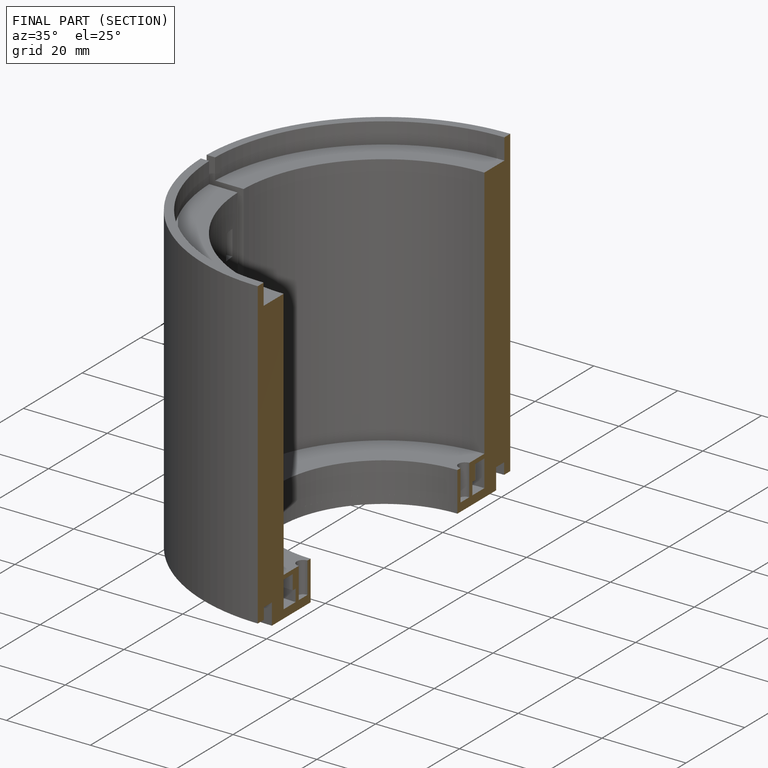
[diagram: finished part — half-section view (interior)]
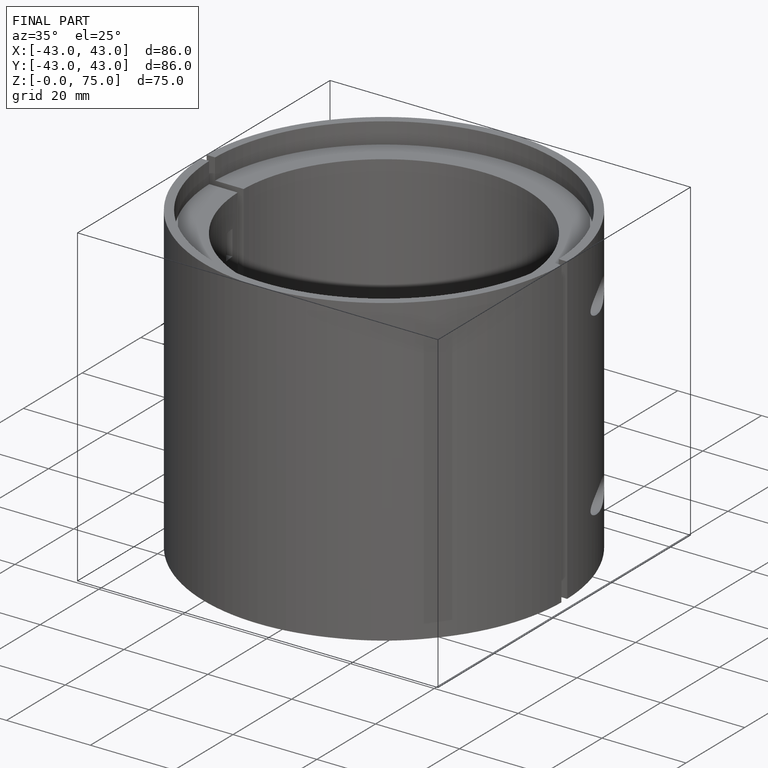
[diagram: finished part — iso view with bounding-box wireframe]
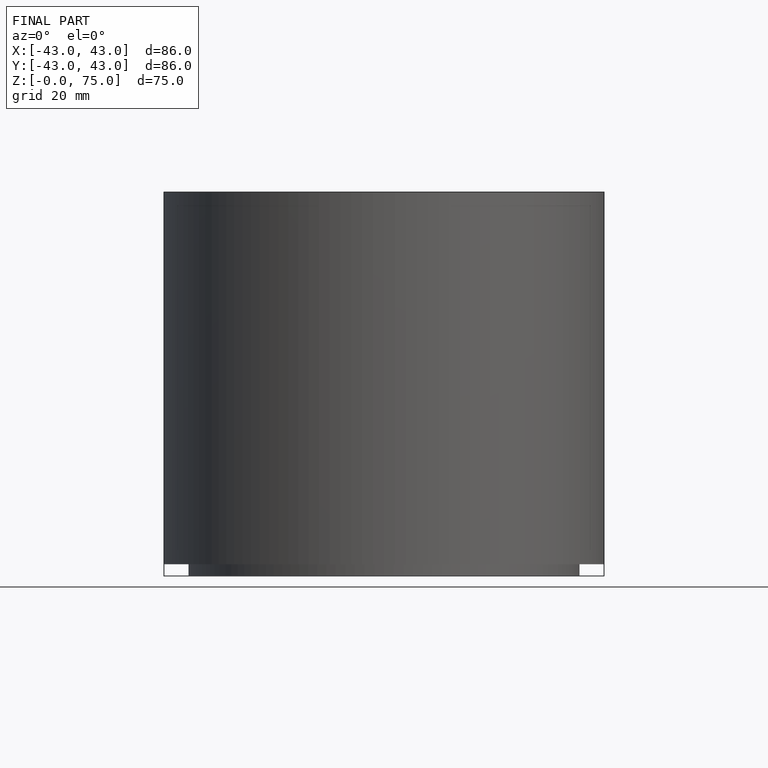
[diagram: finished part — front view with bounding-box wireframe]
